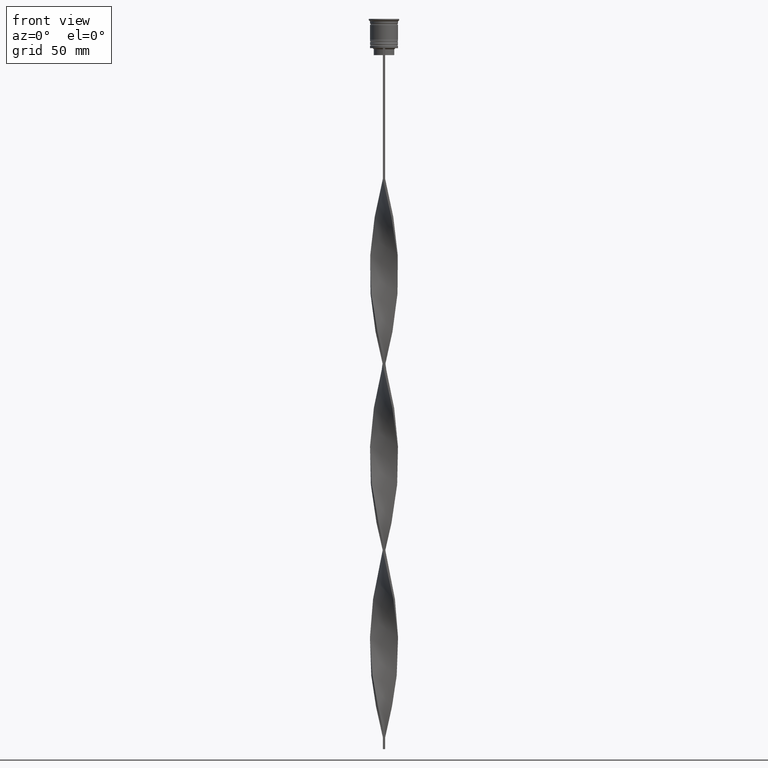
[diagram: clean part render]
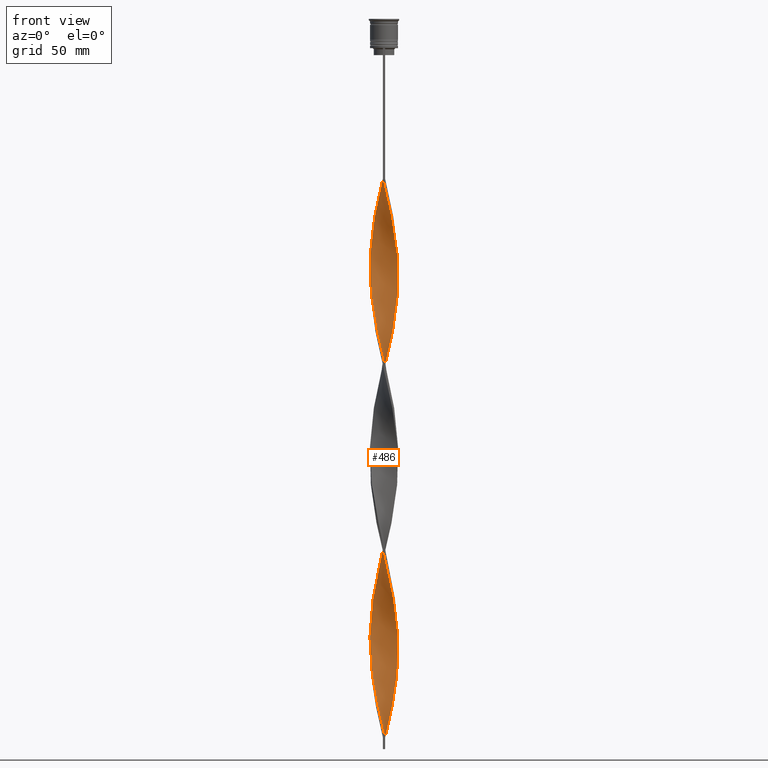
[diagram: same view with one face highlighted and labeled with its STEP entity id]
A machine part, front view. The second image highlights one B-rep face of the part: STEP entity #486.
In plain terms, the highlighted face is a freeform B-spline surface patch.
Its self-contained STEP definition (entity closure, byte-faithful):
#9 = CARTESIAN_POINT ( 'NONE',  ( 5.735176475513732441, -1.892691680130197840, -261.6916666666666629 ) ) ;
#12 = CARTESIAN_POINT ( 'NONE',  ( 0.4999999999999990563, -6.000000000000000000, -307.5000000000000000 ) ) ;
#13 = CARTESIAN_POINT ( 'NONE',  ( -6.039350853412310371, 0.02778975905228745977, -189.9916666666667027 ) ) ;
#20 = CARTESIAN_POINT ( 'NONE',  ( -5.735176475513732441, -1.892691680130197174, -273.6416666666666515 ) ) ;
#27 = CARTESIAN_POINT ( 'NONE',  ( -4.902271885939097018, -3.527358977712832466, -205.9250000000000114 ) ) ;
#32 = CARTESIAN_POINT ( 'NONE',  ( -5.147994592395921387, -3.122203016567363765, -203.9333333333333655 ) ) ;
#46 = CARTESIAN_POINT ( 'NONE',  ( -6.000000000000000000, -0.4999999999999994449, -108.3333333333333428 ) ) ;
#49 = CARTESIAN_POINT ( 'NONE',  ( 3.889087296526011706, -4.596194077712558723, -247.7500000000000284 ) ) ;
#70 = CARTESIAN_POINT ( 'NONE',  ( 4.869603064867703779, -3.572323752398604224, -253.7250000000000512 ) ) ;
#73 = CARTESIAN_POINT ( 'NONE',  ( -0.4447626199438173278, -6.004347276090941321, -144.1833333333333371 ) ) ;
#74 = CARTESIAN_POINT ( 'NONE',  ( 5.960649146587691405, -0.9722102409477109131, -265.6750000000000682 ) ) ;
#91 = CARTESIAN_POINT ( 'NONE',  ( -2.329630224397260641, 5.551830600583447684, -76.46666666666666856 ) ) ;
#93 = CARTESIAN_POINT ( 'NONE',  ( -1.432450960538953932, 5.847912811050711035, -72.48333333333334849 ) ) ;
#110 = CARTESIAN_POINT ( 'NONE',  ( -5.969343698769574935, 0.9173149989399227433, -102.3583333333333343 ) ) ;
#111 = CARTESIAN_POINT ( 'NONE',  ( -5.969343698769575823, 0.9173149989399227433, -261.6916666666666629 ) ) ;
#131 = CARTESIAN_POINT ( 'NONE',  ( 3.572323752398604224, 4.869603064867703779, -293.5583333333334508 ) ) ;
#133 = CARTESIAN_POINT ( 'NONE',  ( 6.039350853412310371, -0.02778975905228946511, -110.3250000000000171 ) ) ;
#136 = CARTESIAN_POINT ( 'NONE',  ( -5.368484725653163814, -2.766568768664325439, -277.6250000000000568 ) ) ;
#154 = CARTESIAN_POINT ( 'NONE',  ( -1.378573708102108331, -5.860847594958395135, -140.1999999999999886 ) ) ;
#155 = CARTESIAN_POINT ( 'NONE',  ( 1.892691680130198284, 5.735176475513732441, -142.1916666666666913 ) ) ;
#157 = CARTESIAN_POINT ( 'NONE',  ( -3.889087296526012150, -4.596194077712557835, -287.5833333333333712 ) ) ;
#161 = CARTESIAN_POINT ( 'NONE',  ( 6.004347276090942209, 0.4447626199438162731, -271.6499999999999773 ) ) ;
#176 = CARTESIAN_POINT ( 'NONE',  ( 0.9173149989399209669, 5.969343698769575823, -221.8583333333333769 ) ) ;
#194 = CARTESIAN_POINT ( 'NONE',  ( -4.596194077712558723, 3.889087296526011706, -247.7500000000000284 ) ) ;
#223 = CARTESIAN_POINT ( 'NONE',  ( 3.527358977712831134, -4.902271885939097906, -86.42499999999999716 ) ) ;
#228 = CARTESIAN_POINT ( 'NONE',  ( 3.931220010942312104, -4.560209340103448916, -164.1000000000000227 ) ) ;
#241 = CARTESIAN_POINT ( 'NONE',  ( 1.839832417264294362, -5.752351491147217111, -78.45833333333334281 ) ) ;
#246 = CARTESIAN_POINT ( 'NONE',  ( 2.278439736343097710, 5.573034394999980101, -215.8833333333333542 ) ) ;
#248 = CARTESIAN_POINT ( 'NONE',  ( -4.560209340103447140, 3.931220010942312992, -172.0666666666666629 ) ) ;
#269 = CARTESIAN_POINT ( 'NONE',  ( -1.432450960538953932, 5.847912811050711035, -231.8166666666666629 ) ) ;
#283 = CARTESIAN_POINT ( 'NONE',  ( 4.902271885939097906, 3.527358977712830246, -126.2583333333333400 ) ) ;
#298 = CARTESIAN_POINT ( 'NONE',  ( 0.9173149989399222992, -5.969343698769575823, -233.8083333333333371 ) ) ;
#306 = CARTESIAN_POINT ( 'NONE',  ( 3.122203016567366873, 5.147994592395920499, -211.9000000000000057 ) ) ;
#317 = CARTESIAN_POINT ( 'NONE',  ( 0.4447626199438165506, -6.004347276090942209, -231.8166666666666629 ) ) ;
#320 = CARTESIAN_POINT ( 'NONE',  ( -4.902271885939097906, 3.527358977712831134, -90.40833333333335986 ) ) ;
#322 =( BOUNDED_SURFACE ( )  B_SPLINE_SURFACE ( 1, 2, ( 
 ( #2635, #1050, #2319, #1277, #3809, #344, #2235, #1420, #3100, #1376, #1709, #425, #3028, #2714, #2030, #1108, #2655, #3912, #2150, #2988, #3288, #133, #3933, #445, #1402, #468, #1128, #1733, #2696, #2074, #3011, #1090, #2406, #2679, #2362, #3624, #781, #155, #2009, #562, #2050, #3951, #2382, #3664, #3333, #487, #3643, #804, #1753, #1437, #2797, #1827, #248, #1516, #4053, #1207, #2481, #3827, #2570, #718, #1608, #1920, #2531, #3473, #1966, #987, #1945, #1896, #2258, #27, #1031, #2926, #1627, #3521, #1295, #3790, #632, #2551, #2887, #3165, #405, #2616, #317, #1314, #682, #3852, #1985, #3210, #380, #1584, #3250, #1276, #2868, #70, #3872, #2299, #2905, #9, #3808, #360, #2592, #1012, #3560, #965, #2234, #3493, #653, #2281, #3189, #343, #2987, #424, #2678, #131, #3909, #1478, #2343, #4025, #3605, #1496, #1400 ),
 ( #2361, #1180, #2634, #2654, #91, #4006, #3696, #3271, #2049, #1049, #2317, #3083, #1071, #2968, #761, #2029, #3889, #110, #3932, #2125, #1089, #3623, #3010, #780, #3311, #3580, #2458, #1160, #740, #2772, #3721, #466, #1358, #1732, #2008, #2752, #154, #2437, #1375, #444, #3405, #1708, #1808, #880, #856, #3386, #2147, #542, #228, #560, #2952, #4111, #2166, #938, #897, #3140, #957, #3741, #3158, #3447, #4051, #1538, #3424, #979, #1598, #579, #625, #2794, #3820, #2819, #3486, #1268, #306, #1845, #246, #3507, #1825, #1575, #3119, #1205, #1242, #2206, #269, #2226, #606, #4074, #1288, #644, #1556, #2544, #2518, #2856, #1909, #3801, #3178, #1224, #2479, #915, #1871, #332, #2836, #3780, #2880, #20, #2564, #2248, #1664, #1350, #352, #1367, #2626, #1641, #2354, #1061, #711, #1682, #1040, #2332, #3201, #1001, #1082 ) ),
 .UNSPECIFIED., .F., .F., .F. ) 
 B_SPLINE_SURFACE_WITH_KNOTS ( ( 2, 2 ),
 ( 3, 2, 2, 2, 2, 2, 2, 2, 2, 2, 2, 2, 2, 2, 2, 2, 2, 2, 2, 2, 2, 2, 2, 2, 2, 2, 2, 2, 2, 2, 2, 2, 2, 2, 2, 2, 2, 2, 2, 2, 2, 2, 2, 2, 2, 2, 2, 2, 2, 2, 2, 2, 2, 2, 2, 2, 2, 2, 2, 2, 3 ),
 ( 0.000000000000000000, 1.000000000000000000 ),
 ( 0.000000000000000000, 0.01250000000000000069, 0.02500000000000000139, 0.03749999999999999861, 0.05000000000000000278, 0.06250000000000000000, 0.07499999999999999722, 0.08749999999999999445, 0.1000000000000000056, 0.1125000000000000028, 0.1250000000000000000, 0.1375000000000000111, 0.1499999999999999944, 0.1625000000000000056, 0.1749999999999999889, 0.1875000000000000000, 0.2000000000000000111, 0.2124999999999999944, 0.2250000000000000056, 0.2374999999999999889, 0.2500000000000000000, 0.2625000000000000111, 0.2750000000000000222, 0.2874999999999999778, 0.2999999999999999889, 0.3125000000000000000, 0.3250000000000000111, 0.3375000000000000222, 0.3499999999999999778, 0.3624999999999999889, 0.3750000000000000000, 0.3875000000000000111, 0.4000000000000000222, 0.4124999999999999778, 0.4249999999999999889, 0.4375000000000000000, 0.4500000000000000111, 0.4625000000000000222, 0.4749999999999999778, 0.4874999999999999889, 0.5000000000000000000, 0.5124999999999999556, 0.5250000000000000222, 0.5374999999999999778, 0.5500000000000000444, 0.5625000000000000000, 0.5749999999999999556, 0.5875000000000000222, 0.5999999999999999778, 0.6125000000000000444, 0.6250000000000000000, 0.6374999999999999556, 0.6500000000000000222, 0.6624999999999999778, 0.6750000000000000444, 0.6875000000000000000, 0.6999999999999999556, 0.7125000000000000222, 0.7249999999999999778, 0.7375000000000000444, 0.7500000000000000000 ),
 .UNSPECIFIED. ) 
 GEOMETRIC_REPRESENTATION_ITEM ( )  RATIONAL_B_SPLINE_SURFACE ( (
 ( 1.000000000000000000, 0.9969173337331279638, 1.000000000000000000, 0.9969173337331279638, 1.000000000000000000, 0.9969173337331279638, 1.000000000000000000, 0.9969173337331279638, 1.000000000000000000, 0.9969173337331279638, 1.000000000000000000, 0.9969173337331279638, 1.000000000000000000, 0.9969173337331279638, 1.000000000000000000, 0.9969173337331279638, 1.000000000000000000, 0.9969173337331279638, 1.000000000000000000, 0.9969173337331279638, 1.000000000000000000, 0.9969173337331279638, 1.000000000000000000, 0.9969173337331279638, 1.000000000000000000, 0.9969173337331279638, 1.000000000000000000, 0.9969173337331279638, 1.000000000000000000, 0.9969173337331279638, 1.000000000000000000, 0.9969173337331279638, 1.000000000000000000, 0.9969173337331279638, 1.000000000000000000, 0.9969173337331279638, 1.000000000000000000, 0.9969173337331279638, 1.000000000000000000, 0.9969173337331279638, 1.000000000000000000, 0.9969173337331279638, 1.000000000000000000, 0.9969173337331279638, 1.000000000000000000, 0.9969173337331279638, 1.000000000000000000, 0.9969173337331279638, 1.000000000000000000, 0.9969173337331279638, 1.000000000000000000, 0.9969173337331279638, 1.000000000000000000, 0.9969173337331279638, 1.000000000000000000, 0.9969173337331279638, 1.000000000000000000, 0.9969173337331279638, 1.000000000000000000, 0.9969173337331279638, 1.000000000000000000, 0.9969173337331279638, 1.000000000000000000, 0.9969173337331279638, 1.000000000000000000, 0.9969173337331279638, 1.000000000000000000, 0.9969173337331279638, 1.000000000000000000, 0.9969173337331279638, 1.000000000000000000, 0.9969173337331279638, 1.000000000000000000, 0.9969173337331279638, 1.000000000000000000, 0.9969173337331279638, 1.000000000000000000, 0.9969173337331279638, 1.000000000000000000, 0.9969173337331279638, 1.000000000000000000, 0.9969173337331279638, 1.000000000000000000, 0.9969173337331279638, 1.000000000000000000, 0.9969173337331279638, 1.000000000000000000, 0.9969173337331279638, 1.000000000000000000, 0.9969173337331279638, 1.000000000000000000, 0.9969173337331279638, 1.000000000000000000, 0.9969173337331279638, 1.000000000000000000, 0.9969173337331279638, 1.000000000000000000, 0.9969173337331279638, 1.000000000000000000, 0.9969173337331279638, 1.000000000000000000, 0.9969173337331279638, 1.000000000000000000, 0.9969173337331279638, 1.000000000000000000, 0.9969173337331279638, 1.000000000000000000, 0.9969173337331279638, 1.000000000000000000, 0.9969173337331279638, 1.000000000000000000, 0.9969173337331279638, 1.000000000000000000, 0.9969173337331279638, 1.000000000000000000, 0.9969173337331279638, 1.000000000000000000, 0.9969173337331279638, 1.000000000000000000, 0.9969173337331279638, 1.000000000000000000),
 ( 1.000000000000000000, 0.9969173337331279638, 1.000000000000000000, 0.9969173337331279638, 1.000000000000000000, 0.9969173337331279638, 1.000000000000000000, 0.9969173337331279638, 1.000000000000000000, 0.9969173337331279638, 1.000000000000000000, 0.9969173337331279638, 1.000000000000000000, 0.9969173337331279638, 1.000000000000000000, 0.9969173337331279638, 1.000000000000000000, 0.9969173337331279638, 1.000000000000000000, 0.9969173337331279638, 1.000000000000000000, 0.9969173337331279638, 1.000000000000000000, 0.9969173337331279638, 1.000000000000000000, 0.9969173337331279638, 1.000000000000000000, 0.9969173337331279638, 1.000000000000000000, 0.9969173337331279638, 1.000000000000000000, 0.9969173337331279638, 1.000000000000000000, 0.9969173337331279638, 1.000000000000000000, 0.9969173337331279638, 1.000000000000000000, 0.9969173337331279638, 1.000000000000000000, 0.9969173337331279638, 1.000000000000000000, 0.9969173337331279638, 1.000000000000000000, 0.9969173337331279638, 1.000000000000000000, 0.9969173337331279638, 1.000000000000000000, 0.9969173337331279638, 1.000000000000000000, 0.9969173337331279638, 1.000000000000000000, 0.9969173337331279638, 1.000000000000000000, 0.9969173337331279638, 1.000000000000000000, 0.9969173337331279638, 1.000000000000000000, 0.9969173337331279638, 1.000000000000000000, 0.9969173337331279638, 1.000000000000000000, 0.9969173337331279638, 1.000000000000000000, 0.9969173337331279638, 1.000000000000000000, 0.9969173337331279638, 1.000000000000000000, 0.9969173337331279638, 1.000000000000000000, 0.9969173337331279638, 1.000000000000000000, 0.9969173337331279638, 1.000000000000000000, 0.9969173337331279638, 1.000000000000000000, 0.9969173337331279638, 1.000000000000000000, 0.9969173337331279638, 1.000000000000000000, 0.9969173337331279638, 1.000000000000000000, 0.9969173337331279638, 1.000000000000000000, 0.9969173337331279638, 1.000000000000000000, 0.9969173337331279638, 1.000000000000000000, 0.9969173337331279638, 1.000000000000000000, 0.9969173337331279638, 1.000000000000000000, 0.9969173337331279638, 1.000000000000000000, 0.9969173337331279638, 1.000000000000000000, 0.9969173337331279638, 1.000000000000000000, 0.9969173337331279638, 1.000000000000000000, 0.9969173337331279638, 1.000000000000000000, 0.9969173337331279638, 1.000000000000000000, 0.9969173337331279638, 1.000000000000000000, 0.9969173337331279638, 1.000000000000000000, 0.9969173337331279638, 1.000000000000000000, 0.9969173337331279638, 1.000000000000000000, 0.9969173337331279638, 1.000000000000000000, 0.9969173337331279638, 1.000000000000000000, 0.9969173337331279638, 1.000000000000000000, 0.9969173337331279638, 1.000000000000000000, 0.9969173337331279638, 1.000000000000000000) ) ) 
 REPRESENTATION_ITEM ( '' )  SURFACE ( )  );
#323 = CARTESIAN_POINT ( 'NONE',  ( -5.551830600583447684, 2.329630224397261973, -180.0333333333333599 ) ) ;
#332 = CARTESIAN_POINT ( 'NONE',  ( -6.039350853412310371, -0.02778975905228876081, -265.6750000000000682 ) ) ;
#337 = CARTESIAN_POINT ( 'NONE',  ( -0.4447626199438173278, -6.004347276090941321, -303.5166666666666515 ) ) ;
#343 = CARTESIAN_POINT ( 'NONE',  ( 4.902271885939097906, 3.527358977712830246, -285.5916666666666401 ) ) ;
#344 = CARTESIAN_POINT ( 'NONE',  ( 1.839832417264294362, -5.752351491147217111, -78.45833333333332860 ) ) ;
#345 = CARTESIAN_POINT ( 'NONE',  ( -5.119043895260434240, -3.169446260531464166, -120.2833333333333456 ) ) ;
#346 = CARTESIAN_POINT ( 'NONE',  ( -1.839832417264293252, 5.752351491147217999, -158.1250000000000284 ) ) ;
#352 = CARTESIAN_POINT ( 'NONE',  ( -4.560209340103448916, -3.931220010942312104, -283.6000000000000227 ) ) ;
#360 = CARTESIAN_POINT ( 'NONE',  ( 5.960649146587692293, -0.9722102409477109131, -265.6750000000000682 ) ) ;
#363 = CARTESIAN_POINT ( 'NONE',  ( -6.039350853412310371, -0.02778975905228876081, -106.3416666666666686 ) ) ;
#364 = CARTESIAN_POINT ( 'NONE',  ( 0.4447626199438165506, -6.004347276090942209, -231.8166666666666629 ) ) ;
#380 = CARTESIAN_POINT ( 'NONE',  ( 3.122203016567365541, -5.147994592395921387, -243.7666666666666799 ) ) ;
#382 = CARTESIAN_POINT ( 'NONE',  ( -1.378573708102108331, -5.860847594958395135, -140.1999999999999886 ) ) ;
#384 = CARTESIAN_POINT ( 'NONE',  ( 2.766568768664326328, 5.368484725653163814, -297.5416666666666856 ) ) ;
#396 = VECTOR ( 'NONE', #450, 1000.000000000000000 ) ;
#405 = CARTESIAN_POINT ( 'NONE',  ( -0.4999999999999997780, -6.000000000000000000, -227.8333333333333428 ) ) ;
#408 = CARTESIAN_POINT ( 'NONE',  ( -2.766568768664325884, 5.368484725653163814, -78.45833333333334281 ) ) ;
#424 = CARTESIAN_POINT ( 'NONE',  ( 4.290116269486021316, 4.250815615339194053, -289.5750000000000455 ) ) ;
#425 = CARTESIAN_POINT ( 'NONE',  ( 4.250815615339194053, -4.290116269486021316, -90.40833333333334565 ) ) ;
#426 = CARTESIAN_POINT ( 'NONE',  ( -6.000000000000000000, -0.4999999999999994449, -267.6666666666667425 ) ) ;
#429 = LINE ( 'NONE', #1076, #396 ) ;
#444 = CARTESIAN_POINT ( 'NONE',  ( 0.02778975905228832713, -6.039350853412310371, -146.1749999999999829 ) ) ;
#445 = CARTESIAN_POINT ( 'NONE',  ( 5.969343698769574935, 0.9173149989399217441, -114.3083333333333655 ) ) ;
#447 = CARTESIAN_POINT ( 'NONE',  ( -5.847912811050711035, -1.432450960538953488, -271.6499999999999773 ) ) ;
#450 = DIRECTION ( 'NONE',  ( 0.000000000000000000, 1.000000000000000000, 0.000000000000000000 ) ) ;
#466 = CARTESIAN_POINT ( 'NONE',  ( -3.527358977712831134, -4.902271885939097906, -130.2416666666667027 ) ) ;
#468 = CARTESIAN_POINT ( 'NONE',  ( 5.752351491147217111, 1.839832417264293918, -118.2916666666666998 ) ) ;
#471 = CARTESIAN_POINT ( 'NONE',  ( -4.560209340103448916, -3.931220010942312104, -283.6000000000000227 ) ) ;
#475 = CARTESIAN_POINT ( 'NONE',  ( 6.000000000000000000, -0.5000000000000001110, -267.6666666666667425 ) ) ;
#486 = ADVANCED_FACE ( 'NONE', ( #2594 ), #322, .T. ) ;
#487 = CARTESIAN_POINT ( 'NONE',  ( -1.839832417264293252, 5.752351491147217999, -158.1250000000000000 ) ) ;
#489 = CARTESIAN_POINT ( 'NONE',  ( 3.889087296526013038, 4.596194077712556947, -207.9166666666666572 ) ) ;
#503 = CARTESIAN_POINT ( 'NONE',  ( -3.169446260531464166, 5.119043895260434240, -239.7833333333333599 ) ) ;
#536 = CARTESIAN_POINT ( 'NONE',  ( 4.560209340103448028, -3.931220010942312992, -92.40000000000000568 ) ) ;
#542 = CARTESIAN_POINT ( 'NONE',  ( 3.572323752398603336, -4.869603064867704667, -162.1083333333333769 ) ) ;
#554 = CARTESIAN_POINT ( 'NONE',  ( 2.278439736343096378, -5.573034394999980989, -80.45000000000000284 ) ) ;
#560 = CARTESIAN_POINT ( 'NONE',  ( 4.290116269486020428, -4.250815615339194942, -166.0916666666666686 ) ) ;
#562 = CARTESIAN_POINT ( 'NONE',  ( 0.9722102409477113572, 5.960649146587692293, -146.1749999999999829 ) ) ;
#573 = CARTESIAN_POINT ( 'NONE',  ( 5.393717298852746644, 2.717047055421899948, -122.2750000000000199 ) ) ;
#579 = CARTESIAN_POINT ( 'NONE',  ( 5.368484725653162926, 2.766568768664326772, -197.9583333333333997 ) ) ;
#598 = CARTESIAN_POINT ( 'NONE',  ( 0.02778975905228979124, 6.039350853412310371, -150.1583333333333599 ) ) ;
#606 = CARTESIAN_POINT ( 'NONE',  ( -2.329630224397260641, 5.551830600583447684, -235.8000000000000114 ) ) ;
#619 = CARTESIAN_POINT ( 'NONE',  ( -5.752351491147216223, -1.839832417264295694, -197.9583333333333712 ) ) ;
#625 = CARTESIAN_POINT ( 'NONE',  ( 5.119043895260435129, 3.169446260531463722, -199.9500000000000171 ) ) ;
#629 = CARTESIAN_POINT ( 'NONE',  ( -2.717047055421900836, -5.393717298852745756, -293.5583333333333940 ) ) ;
#632 = CARTESIAN_POINT ( 'NONE',  ( -2.329630224397262417, -5.551830600583447684, -219.8666666666666742 ) ) ;
#634 = CARTESIAN_POINT ( 'NONE',  ( -5.551830600583448572, -2.329630224397260641, -116.3000000000000114 ) ) ;
#635 = CARTESIAN_POINT ( 'NONE',  ( 3.122203016567365541, -5.147994592395921387, -243.7666666666666799 ) ) ;
#644 = CARTESIAN_POINT ( 'NONE',  ( -3.572323752398604224, 4.869603064867704667, -241.7750000000000625 ) ) ;
#653 = CARTESIAN_POINT ( 'NONE',  ( 5.573034394999980989, 2.278439736343096378, -279.6166666666666742 ) ) ;
#656 = CARTESIAN_POINT ( 'NONE',  ( -6.004347276090942209, 0.4447626199438168837, -104.3499999999999943 ) ) ;
#659 = CARTESIAN_POINT ( 'NONE',  ( -2.329630224397262417, -5.551830600583447684, -219.8666666666666742 ) ) ;
#682 = CARTESIAN_POINT ( 'NONE',  ( 1.378573708102107886, -5.860847594958395135, -235.8000000000000114 ) ) ;
#684 = CARTESIAN_POINT ( 'NONE',  ( -3.122203016567365985, -5.147994592395920499, -132.2333333333333485 ) ) ;
#685 = CARTESIAN_POINT ( 'NONE',  ( -3.572323752398603780, -4.869603064867703779, -213.8916666666666799 ) ) ;
#701 = CARTESIAN_POINT ( 'NONE',  ( -5.960649146587691405, -0.9722102409477102469, -110.3250000000000171 ) ) ;
#703 = CARTESIAN_POINT ( 'NONE',  ( 5.752351491147217111, 1.839832417264293918, -277.6250000000000568 ) ) ;
#711 = CARTESIAN_POINT ( 'NONE',  ( -2.278439736343097710, -5.573034394999980101, -295.5499999999999545 ) ) ;
#718 = CARTESIAN_POINT ( 'NONE',  ( -5.960649146587692293, 0.9722102409477144658, -186.0083333333333258 ) ) ;
#721 = CARTESIAN_POINT ( 'NONE',  ( 0.9722102409477098028, -5.960649146587691405, -150.1583333333333599 ) ) ;
#740 = CARTESIAN_POINT ( 'NONE',  ( -4.560209340103448916, -3.931220010942312104, -124.2666666666666799 ) ) ;
#744 = CARTESIAN_POINT ( 'NONE',  ( 5.393717298852746644, -2.717047055421898616, -174.0583333333333371 ) ) ;
#747 = CARTESIAN_POINT ( 'NONE',  ( 1.892691680130198284, 5.735176475513732441, -301.5250000000000341 ) ) ;
#757 = CARTESIAN_POINT ( 'NONE',  ( 0.5000000000000000000, 2.000000000000000000, -307.5000000000000000 ) ) ;
#759 =( BOUNDED_CURVE ( )  B_SPLINE_CURVE ( 2, ( #3399, #1449, #4067, #3690, #3735, #241, #554, #2117, #1532, #223, #3378, #892, #536, #2727, #2766, #1175, #4020, #2473, #1820, #3094, #1509, #2788, #4044, #2812, #1198, #3984, #2160, #573, #3755, #283, #4085, #2829, #3795, #3477, #909, #3832, #3460, #3169, #1899, #1298, #970, #598, #1611, #3135, #2200, #346, #2873, #950, #1925, #1281, #2574, #2178, #1235, #1319, #3193, #2847, #323, #1589, #2512, #2239, #2891, #13, #3498, #2219, #1550, #619, #3773, #1882, #32, #992, #3151, #3440, #2598, #685, #2557, #3813, #659, #1949, #2264, #930, #3525, #3214, #364, #298, #1633, #1865, #2909, #1567, #635, #1258, #49, #4103, #2536, #1408, #2284, #2619, #2348, #3232, #3610, #74, #475, #2972, #161, #1094, #1014, #703, #2684, #1342, #1677, #3628, #3017, #785, #3938, #2367, #1739, #384, #766, #747, #2014, #1655, #2955 ),
 .UNSPECIFIED., .F., .T. ) 
 B_SPLINE_CURVE_WITH_KNOTS ( ( 3, 2, 2, 2, 2, 2, 2, 2, 2, 2, 2, 2, 2, 2, 2, 2, 2, 2, 2, 2, 2, 2, 2, 2, 2, 2, 2, 2, 2, 2, 2, 2, 2, 2, 2, 2, 2, 2, 2, 2, 2, 2, 2, 2, 2, 2, 2, 2, 2, 2, 2, 2, 2, 2, 2, 2, 2, 2, 2, 2, 3 ),
 ( 0.000000000000000000, 0.01250000000000000243, 0.02500000000000000486, 0.03749999999999999861, 0.05000000000000000971, 0.06250000000000000000, 0.07499999999999999722, 0.08749999999999998057, 0.1000000000000000194, 0.1125000000000000028, 0.1250000000000000000, 0.1375000000000000111, 0.1499999999999999944, 0.1625000000000000056, 0.1749999999999999611, 0.1875000000000000000, 0.2000000000000000389, 0.2124999999999999944, 0.2250000000000000056, 0.2374999999999999611, 0.2500000000000000000, 0.2625000000000000111, 0.2750000000000000222, 0.2874999999999999778, 0.2999999999999999889, 0.3125000000000000000, 0.3250000000000000111, 0.3375000000000000777, 0.3499999999999999223, 0.3624999999999999889, 0.3750000000000000000, 0.3875000000000000111, 0.4000000000000000777, 0.4124999999999999223, 0.4249999999999999889, 0.4375000000000000000, 0.4500000000000000111, 0.4625000000000000777, 0.4749999999999999223, 0.4874999999999999889, 0.5000000000000000000, 0.5124999999999999556, 0.5250000000000000222, 0.5374999999999999778, 0.5500000000000000444, 0.5625000000000000000, 0.5749999999999999556, 0.5875000000000000222, 0.5999999999999999778, 0.6125000000000000444, 0.6250000000000000000, 0.6374999999999999556, 0.6500000000000000222, 0.6624999999999999778, 0.6750000000000001554, 0.6875000000000000000, 0.6999999999999998446, 0.7125000000000000222, 0.7249999999999999778, 0.7375000000000001554, 0.7500000000000000000 ),
 .UNSPECIFIED. ) 
 CURVE ( )  GEOMETRIC_REPRESENTATION_ITEM ( )  RATIONAL_B_SPLINE_CURVE ( ( 1.000000000000000000, 0.9969173337331279638, 1.000000000000000000, 0.9969173337331279638, 1.000000000000000000, 0.9969173337331279638, 1.000000000000000000, 0.9969173337331279638, 1.000000000000000000, 0.9969173337331279638, 1.000000000000000000, 0.9969173337331279638, 1.000000000000000000, 0.9969173337331279638, 1.000000000000000000, 0.9969173337331279638, 1.000000000000000000, 0.9969173337331279638, 1.000000000000000000, 0.9969173337331279638, 1.000000000000000000, 0.9969173337331279638, 1.000000000000000000, 0.9969173337331279638, 1.000000000000000000, 0.9969173337331279638, 1.000000000000000000, 0.9969173337331279638, 1.000000000000000000, 0.9969173337331279638, 1.000000000000000000, 0.9969173337331279638, 1.000000000000000000, 0.9969173337331279638, 1.000000000000000000, 0.9969173337331279638, 1.000000000000000000, 0.9969173337331279638, 1.000000000000000000, 0.9969173337331279638, 1.000000000000000000, 0.9969173337331279638, 1.000000000000000000, 0.9969173337331279638, 1.000000000000000000, 0.9969173337331279638, 1.000000000000000000, 0.9969173337331279638, 1.000000000000000000, 0.9969173337331279638, 1.000000000000000000, 0.9969173337331279638, 1.000000000000000000, 0.9969173337331279638, 1.000000000000000000, 0.9969173337331279638, 1.000000000000000000, 0.9969173337331279638, 1.000000000000000000, 0.9969173337331279638, 1.000000000000000000, 0.9969173337331279638, 1.000000000000000000, 0.9969173337331279638, 1.000000000000000000, 0.9969173337331279638, 1.000000000000000000, 0.9969173337331279638, 1.000000000000000000, 0.9969173337331279638, 1.000000000000000000, 0.9969173337331279638, 1.000000000000000000, 0.9969173337331279638, 1.000000000000000000, 0.9969173337331279638, 1.000000000000000000, 0.9969173337331279638, 1.000000000000000000, 0.9969173337331279638, 1.000000000000000000, 0.9969173337331279638, 1.000000000000000000, 0.9969173337331279638, 1.000000000000000000, 0.9969173337331279638, 1.000000000000000000, 0.9969173337331279638, 1.000000000000000000, 0.9969173337331279638, 1.000000000000000000, 0.9969173337331279638, 1.000000000000000000, 0.9969173337331279638, 1.000000000000000000, 0.9969173337331279638, 1.000000000000000000, 0.9969173337331279638, 1.000000000000000000, 0.9969173337331279638, 1.000000000000000000, 0.9969173337331279638, 1.000000000000000000, 0.9969173337331279638, 1.000000000000000000, 0.9969173337331279638, 1.000000000000000000, 0.9969173337331279638, 1.000000000000000000, 0.9969173337331279638, 1.000000000000000000, 0.9969173337331279638, 1.000000000000000000, 0.9969173337331279638, 1.000000000000000000, 0.9969173337331279638, 1.000000000000000000, 0.9969173337331279638, 1.000000000000000000, 0.9969173337331279638, 1.000000000000000000 ) ) 
 REPRESENTATION_ITEM ( '' )  );
#761 = CARTESIAN_POINT ( 'NONE',  ( -5.573034394999980101, 2.278439736343096822, -96.38333333333335418 ) ) ;
#763 = CARTESIAN_POINT ( 'NONE',  ( -0.9722102409477105800, 5.960649146587691405, -229.8250000000000171 ) ) ;
#766 = CARTESIAN_POINT ( 'NONE',  ( 2.329630224397261529, 5.551830600583447684, -299.5333333333333030 ) ) ;
#780 = CARTESIAN_POINT ( 'NONE',  ( -5.735176475513732441, -1.892691680130197174, -114.3083333333333655 ) ) ;
#781 = CARTESIAN_POINT ( 'NONE',  ( 2.329630224397261529, 5.551830600583447684, -140.1999999999999886 ) ) ;
#783 = CARTESIAN_POINT ( 'NONE',  ( 5.847912811050711035, 1.432450960538952600, -191.9833333333333485 ) ) ;
#785 = CARTESIAN_POINT ( 'NONE',  ( 4.290116269486021316, 4.250815615339194053, -289.5750000000000455 ) ) ;
#804 = CARTESIAN_POINT ( 'NONE',  ( -2.717047055421899060, 5.393717298852745756, -162.1083333333333769 ) ) ;
#806 = CARTESIAN_POINT ( 'NONE',  ( 5.752351491147215334, -1.839832417264297248, -178.0416666666667140 ) ) ;
#824 = CARTESIAN_POINT ( 'NONE',  ( 3.527358977712834243, 4.902271885939096130, -209.9083333333333599 ) ) ;
#856 = CARTESIAN_POINT ( 'NONE',  ( 2.329630224397260196, -5.551830600583448572, -156.1333333333333542 ) ) ;
#880 = CARTESIAN_POINT ( 'NONE',  ( 1.892691680130196952, -5.735176475513732441, -154.1416666666666799 ) ) ;
#892 = CARTESIAN_POINT ( 'NONE',  ( 4.250815615339194053, -4.290116269486021316, -90.40833333333335986 ) ) ;
#897 = CARTESIAN_POINT ( 'NONE',  ( 5.573034394999980101, -2.278439736343097710, -176.0500000000000114 ) ) ;
#909 = CARTESIAN_POINT ( 'NONE',  ( 3.169446260531464610, 5.119043895260433352, -136.2166666666666686 ) ) ;
#915 = CARTESIAN_POINT ( 'NONE',  ( -5.969343698769574935, 0.9173149989399227433, -261.6916666666666629 ) ) ;
#930 = CARTESIAN_POINT ( 'NONE',  ( -0.9722102409477146878, -5.960649146587691405, -225.8416666666666970 ) ) ;
#938 = CARTESIAN_POINT ( 'NONE',  ( 5.393717298852745756, -2.717047055421898616, -174.0583333333333371 ) ) ;
#950 = CARTESIAN_POINT ( 'NONE',  ( -2.717047055421899060, 5.393717298852746644, -162.1083333333333769 ) ) ;
#957 = CARTESIAN_POINT ( 'NONE',  ( 5.860847594958395135, -1.378573708102108775, -180.0333333333333599 ) ) ;
#965 = CARTESIAN_POINT ( 'NONE',  ( 5.969343698769574935, 0.9173149989399217441, -273.6416666666666515 ) ) ;
#968 = CARTESIAN_POINT ( 'NONE',  ( -2.329630224397260641, 5.551830600583447684, -76.46666666666666856 ) ) ;
#970 = CARTESIAN_POINT ( 'NONE',  ( 0.5000000000000005551, 6.000000000000000000, -148.1666666666666572 ) ) ;
#979 = CARTESIAN_POINT ( 'NONE',  ( 5.735176475513733330, 1.892691680130193843, -193.9749999999999943 ) ) ;
#987 = CARTESIAN_POINT ( 'NONE',  ( -5.752351491147216223, -1.839832417264295694, -197.9583333333333997 ) ) ;
#990 = CARTESIAN_POINT ( 'NONE',  ( -5.368484725653163814, -2.766568768664325439, -118.2916666666666998 ) ) ;
#992 = CARTESIAN_POINT ( 'NONE',  ( -4.902271885939097018, -3.527358977712832466, -205.9250000000000114 ) ) ;
#1001 = CARTESIAN_POINT ( 'NONE',  ( 0.02778975905228832713, -6.039350853412310371, -305.5083333333334963 ) ) ;
#1012 = CARTESIAN_POINT ( 'NONE',  ( 6.039350853412310371, -0.02778975905228946511, -269.6583333333334167 ) ) ;
#1014 = CARTESIAN_POINT ( 'NONE',  ( 5.860847594958396023, 1.378573708102107442, -275.6333333333333258 ) ) ;
#1031 = CARTESIAN_POINT ( 'NONE',  ( -4.596194077712559611, -3.889087296526010373, -207.9166666666666572 ) ) ;
#1033 = CARTESIAN_POINT ( 'NONE',  ( -3.527358977712831134, -4.902271885939097906, -130.2416666666667027 ) ) ;
#1040 = CARTESIAN_POINT ( 'NONE',  ( -1.378573708102108331, -5.860847594958395135, -299.5333333333333030 ) ) ;
#1049 = CARTESIAN_POINT ( 'NONE',  ( -4.290116269486021316, 4.250815615339194053, -86.42499999999999716 ) ) ;
#1050 = CARTESIAN_POINT ( 'NONE',  ( -0.02778975905228908000, -6.039350853412310371, -70.49166666666670267 ) ) ;
#1052 = CARTESIAN_POINT ( 'NONE',  ( 3.572323752398603780, -4.869603064867703779, -162.1083333333333769 ) ) ;
#1061 = CARTESIAN_POINT ( 'NONE',  ( -2.717047055421900836, -5.393717298852744868, -293.5583333333334508 ) ) ;
#1071 = CARTESIAN_POINT ( 'NONE',  ( -5.147994592395921387, 3.122203016567365541, -92.40000000000000568 ) ) ;
#1073 = CARTESIAN_POINT ( 'NONE',  ( 5.573034394999980101, -2.278439736343097710, -176.0500000000000114 ) ) ;
#1076 = CARTESIAN_POINT ( 'NONE',  ( -0.4999999999999997780, -6.000000000000000000, -68.50000000000000000 ) ) ;
#1082 = CARTESIAN_POINT ( 'NONE',  ( 0.4999999999999990563, -6.000000000000000000, -307.5000000000000000 ) ) ;
#1089 = CARTESIAN_POINT ( 'NONE',  ( -6.000000000000000000, -0.4999999999999994449, -108.3333333333333428 ) ) ;
#1090 = CARTESIAN_POINT ( 'NONE',  ( 4.290116269486021316, 4.250815615339194053, -130.2416666666667027 ) ) ;
#1092 = CARTESIAN_POINT ( 'NONE',  ( 2.717047055421899060, 5.393717298852746644, -213.8916666666666799 ) ) ;
#1094 = CARTESIAN_POINT ( 'NONE',  ( 5.969343698769575823, 0.9173149989399217441, -273.6416666666666515 ) ) ;
#1108 = CARTESIAN_POINT ( 'NONE',  ( 5.368484725653163814, -2.766568768664325884, -98.37500000000002842 ) ) ;
#1110 = CARTESIAN_POINT ( 'NONE',  ( -3.527358977712831134, -4.902271885939097906, -289.5750000000000455 ) ) ;
#1128 = CARTESIAN_POINT ( 'NONE',  ( 5.573034394999980989, 2.278439736343096378, -120.2833333333333456 ) ) ;
#1130 = CARTESIAN_POINT ( 'NONE',  ( 4.596194077712557835, -3.889087296526013038, -168.0833333333333712 ) ) ;
#1160 = CARTESIAN_POINT ( 'NONE',  ( -4.869603064867704667, -3.572323752398604224, -122.2750000000000341 ) ) ;
#1165 = CARTESIAN_POINT ( 'NONE',  ( -3.122203016567365985, -5.147994592395920499, -291.5666666666667197 ) ) ;
#1175 = CARTESIAN_POINT ( 'NONE',  ( 5.368484725653163814, -2.766568768664325884, -98.37500000000001421 ) ) ;
#1180 = CARTESIAN_POINT ( 'NONE',  ( -0.9722102409477106910, 5.960649146587692293, -70.49166666666670267 ) ) ;
#1198 = CARTESIAN_POINT ( 'NONE',  ( 5.860847594958396023, 1.378573708102107442, -116.3000000000000114 ) ) ;
#1205 = CARTESIAN_POINT ( 'NONE',  ( -0.02778975905228496524, 6.039350853412310371, -225.8416666666666970 ) ) ;
#1207 = CARTESIAN_POINT ( 'NONE',  ( -5.368484725653162037, 2.766568768664328548, -178.0416666666667140 ) ) ;
#1224 = CARTESIAN_POINT ( 'NONE',  ( -5.752351491147217111, 1.839832417264294362, -257.7083333333333144 ) ) ;
#1235 = CARTESIAN_POINT ( 'NONE',  ( -4.560209340103447140, 3.931220010942312992, -172.0666666666666629 ) ) ;
#1242 = CARTESIAN_POINT ( 'NONE',  ( -0.4999999999999997780, 6.000000000000000000, -227.8333333333333428 ) ) ;
#1258 = CARTESIAN_POINT ( 'NONE',  ( 3.527358977712831134, -4.902271885939097906, -245.7583333333333826 ) ) ;
#1268 = CARTESIAN_POINT ( 'NONE',  ( 3.527358977712834243, 4.902271885939096130, -209.9083333333333883 ) ) ;
#1276 = CARTESIAN_POINT ( 'NONE',  ( 4.250815615339194053, -4.290116269486021316, -249.7416666666666742 ) ) ;
#1277 = CARTESIAN_POINT ( 'NONE',  ( 0.9173149989399222992, -5.969343698769574935, -74.47500000000002274 ) ) ;
#1281 = CARTESIAN_POINT ( 'NONE',  ( -3.527358977712830246, 4.902271885939098794, -166.0916666666666970 ) ) ;
#1288 = CARTESIAN_POINT ( 'NONE',  ( -3.169446260531464166, 5.119043895260434240, -239.7833333333333599 ) ) ;
#1295 = CARTESIAN_POINT ( 'NONE',  ( -3.169446260531465498, -5.119043895260433352, -215.8833333333333542 ) ) ;
#1296 = CARTESIAN_POINT ( 'NONE',  ( -4.869603064867703779, -3.572323752398604224, -122.2750000000000199 ) ) ;
#1298 = CARTESIAN_POINT ( 'NONE',  ( 0.9722102409477113572, 5.960649146587691405, -146.1750000000000114 ) ) ;
#1314 = CARTESIAN_POINT ( 'NONE',  ( 0.9173149989399222992, -5.969343698769574935, -233.8083333333333371 ) ) ;
#1317 = CARTESIAN_POINT ( 'NONE',  ( -4.560209340103448916, -3.931220010942312104, -124.2666666666666799 ) ) ;
#1319 = CARTESIAN_POINT ( 'NONE',  ( -4.869603064867703779, 3.572323752398603336, -174.0583333333333371 ) ) ;
#1320 = EDGE_LOOP ( 'NONE', ( #2347, #2664, #2849, #3362 ) ) ;
#1342 = CARTESIAN_POINT ( 'NONE',  ( 5.393717298852746644, 2.717047055421899948, -281.6083333333334053 ) ) ;
#1350 = CARTESIAN_POINT ( 'NONE',  ( -4.869603064867704667, -3.572323752398604224, -281.6083333333334622 ) ) ;
#1358 = CARTESIAN_POINT ( 'NONE',  ( -3.122203016567365985, -5.147994592395920499, -132.2333333333333485 ) ) ;
#1360 = CARTESIAN_POINT ( 'NONE',  ( -1.839832417264294806, -5.752351491147217111, -138.2083333333333144 ) ) ;
#1367 = CARTESIAN_POINT ( 'NONE',  ( -4.250815615339194053, -4.290116269486020428, -285.5916666666666401 ) ) ;
#1375 = CARTESIAN_POINT ( 'NONE',  ( -0.4447626199438173278, -6.004347276090941321, -144.1833333333333371 ) ) ;
#1376 = CARTESIAN_POINT ( 'NONE',  ( 3.527358977712831134, -4.902271885939097906, -86.42499999999999716 ) ) ;
#1379 = CARTESIAN_POINT ( 'NONE',  ( 4.250815615339193165, 4.290116269486022205, -205.9250000000000114 ) ) ;
#1395 = CARTESIAN_POINT ( 'NONE',  ( -0.4999999999999997780, 6.000000000000000888, -68.50000000000000000 ) ) ;
#1400 = CARTESIAN_POINT ( 'NONE',  ( 0.5000000000000005551, 6.000000000000000000, -307.5000000000000000 ) ) ;
#1402 = CARTESIAN_POINT ( 'NONE',  ( 5.860847594958396023, 1.378573708102107442, -116.3000000000000114 ) ) ;
#1404 = CARTESIAN_POINT ( 'NONE',  ( -3.572323752398604224, 4.869603064867703779, -241.7750000000000341 ) ) ;
#1408 = CARTESIAN_POINT ( 'NONE',  ( 4.869603064867703779, -3.572323752398604224, -253.7250000000000227 ) ) ;
#1420 = CARTESIAN_POINT ( 'NONE',  ( 2.717047055421899948, -5.393717298852745756, -82.44166666666666288 ) ) ;
#1422 = CARTESIAN_POINT ( 'NONE',  ( -4.869603064867703779, -3.572323752398604224, -281.6083333333334053 ) ) ;
#1437 = CARTESIAN_POINT ( 'NONE',  ( -3.527358977712830246, 4.902271885939098794, -166.0916666666666686 ) ) ;
#1440 = CARTESIAN_POINT ( 'NONE',  ( -0.4999999999999997780, 6.000000000000000000, -227.8333333333333428 ) ) ;
#1449 = CARTESIAN_POINT ( 'NONE',  ( -0.02778975905228908347, -6.039350853412310371, -70.49166666666668846 ) ) ;
#1464 = CARTESIAN_POINT ( 'NONE',  ( -4.902271885939097906, 3.527358977712831134, -249.7416666666667027 ) ) ;
#1478 = CARTESIAN_POINT ( 'NONE',  ( 2.766568768664326328, 5.368484725653163814, -297.5416666666666856 ) ) ;
#1496 = CARTESIAN_POINT ( 'NONE',  ( 0.9722102409477113572, 5.960649146587692293, -305.5083333333334963 ) ) ;
#1509 = CARTESIAN_POINT ( 'NONE',  ( 6.000000000000000000, -0.5000000000000001110, -108.3333333333333428 ) ) ;
#1516 = CARTESIAN_POINT ( 'NONE',  ( -4.869603064867704667, 3.572323752398602892, -174.0583333333333371 ) ) ;
#1532 = CARTESIAN_POINT ( 'NONE',  ( 3.122203016567365541, -5.147994592395921387, -84.43333333333333712 ) ) ;
#1538 = CARTESIAN_POINT ( 'NONE',  ( 5.960649146587692293, 0.9722102409477122453, -189.9916666666667027 ) ) ;
#1550 = CARTESIAN_POINT ( 'NONE',  ( -5.860847594958396023, -1.378573708102106776, -195.9666666666666686 ) ) ;
#1556 = CARTESIAN_POINT ( 'NONE',  ( -3.931220010942312992, 4.560209340103448028, -243.7666666666666799 ) ) ;
#1567 = CARTESIAN_POINT ( 'NONE',  ( 2.717047055421899948, -5.393717298852746644, -241.7750000000000341 ) ) ;
#1574 = EDGE_CURVE ( 'NONE', #4087, #4104, #759, .T. ) ;
#1575 = CARTESIAN_POINT ( 'NONE',  ( 0.9173149989399209669, 5.969343698769574935, -221.8583333333333769 ) ) ;
#1584 = CARTESIAN_POINT ( 'NONE',  ( 3.527358977712831134, -4.902271885939097906, -245.7583333333333826 ) ) ;
#1589 = CARTESIAN_POINT ( 'NONE',  ( -5.735176475513732441, 1.892691680130196064, -182.0250000000000341 ) ) ;
#1598 = CARTESIAN_POINT ( 'NONE',  ( 5.551830600583448572, 2.329630224397259752, -195.9666666666666686 ) ) ;
#1608 = CARTESIAN_POINT ( 'NONE',  ( -6.000000000000000000, 0.5000000000000008882, -188.0000000000000000 ) ) ;
#1610 = CARTESIAN_POINT ( 'NONE',  ( -5.752351491147217111, 1.839832417264294362, -98.37500000000001421 ) ) ;
#1611 = CARTESIAN_POINT ( 'NONE',  ( -0.4447626199438157180, 6.004347276090942209, -152.1500000000000057 ) ) ;
#1627 = CARTESIAN_POINT ( 'NONE',  ( -3.931220010942313881, -4.560209340103447140, -211.9000000000000057 ) ) ;
#1628 = EDGE_CURVE ( 'NONE', #4087, #3589, #429, .T. ) ;
#1630 = CARTESIAN_POINT ( 'NONE',  ( -0.9722102409477105800, 5.960649146587691405, -70.49166666666668846 ) ) ;
#1633 = CARTESIAN_POINT ( 'NONE',  ( 1.378573708102107886, -5.860847594958395135, -235.8000000000000114 ) ) ;
#1641 = CARTESIAN_POINT ( 'NONE',  ( -3.527358977712831134, -4.902271885939097906, -289.5750000000000455 ) ) ;
#1645 = CARTESIAN_POINT ( 'NONE',  ( 0.5000000000000005551, 6.000000000000000000, -307.5000000000000000 ) ) ;
#1655 = CARTESIAN_POINT ( 'NONE',  ( 0.9722102409477113572, 5.960649146587691405, -305.5083333333334394 ) ) ;
#1664 = CARTESIAN_POINT ( 'NONE',  ( -5.119043895260434240, -3.169446260531464166, -279.6166666666666742 ) ) ;
#1675 = CARTESIAN_POINT ( 'NONE',  ( 1.892691680130196952, -5.735176475513732441, -154.1416666666666799 ) ) ;
#1677 = CARTESIAN_POINT ( 'NONE',  ( 5.147994592395920499, 3.122203016567364653, -283.6000000000000227 ) ) ;
#1682 = CARTESIAN_POINT ( 'NONE',  ( -1.839832417264294806, -5.752351491147217111, -297.5416666666666856 ) ) ;
#1690 = CARTESIAN_POINT ( 'NONE',  ( 5.860847594958395135, -1.378573708102108775, -180.0333333333333599 ) ) ;
#1708 = CARTESIAN_POINT ( 'NONE',  ( 0.9722102409477099139, -5.960649146587692293, -150.1583333333333599 ) ) ;
#1709 = CARTESIAN_POINT ( 'NONE',  ( 3.889087296526011706, -4.596194077712558723, -88.41666666666667140 ) ) ;
#1711 = CARTESIAN_POINT ( 'NONE',  ( -3.931220010942312992, 4.560209340103448028, -243.7666666666666799 ) ) ;
#1732 = CARTESIAN_POINT ( 'NONE',  ( -2.717047055421900836, -5.393717298852744868, -134.2249999999999943 ) ) ;
#1733 = CARTESIAN_POINT ( 'NONE',  ( 5.393717298852745756, 2.717047055421899948, -122.2750000000000341 ) ) ;
#1736 = CARTESIAN_POINT ( 'NONE',  ( -4.250815615339194053, -4.290116269486020428, -285.5916666666666970 ) ) ;
#1739 = CARTESIAN_POINT ( 'NONE',  ( 3.169446260531464610, 5.119043895260433352, -295.5499999999999545 ) ) ;
#1753 = CARTESIAN_POINT ( 'NONE',  ( -3.122203016567364653, 5.147994592395920499, -164.1000000000000227 ) ) ;
#1755 = CARTESIAN_POINT ( 'NONE',  ( 5.735176475513733330, 1.892691680130193843, -193.9750000000000227 ) ) ;
#1772 = CARTESIAN_POINT ( 'NONE',  ( -5.147994592395921387, 3.122203016567365541, -251.7333333333333769 ) ) ;
#1808 = CARTESIAN_POINT ( 'NONE',  ( 1.432450960538953044, -5.847912811050711035, -152.1500000000000057 ) ) ;
#1820 = CARTESIAN_POINT ( 'NONE',  ( 5.847912811050711035, -1.432450960538954376, -104.3499999999999943 ) ) ;
#1825 = CARTESIAN_POINT ( 'NONE',  ( 1.378573708102109663, 5.860847594958395135, -219.8666666666666742 ) ) ;
#1827 = CARTESIAN_POINT ( 'NONE',  ( -4.250815615339191389, 4.290116269486023981, -170.0750000000000455 ) ) ;
#1845 = CARTESIAN_POINT ( 'NONE',  ( 2.717047055421899060, 5.393717298852745756, -213.8916666666666799 ) ) ;
#1865 = CARTESIAN_POINT ( 'NONE',  ( 1.839832417264294362, -5.752351491147217111, -237.7916666666667140 ) ) ;
#1871 = CARTESIAN_POINT ( 'NONE',  ( -6.004347276090942209, 0.4447626199438168837, -263.6833333333333940 ) ) ;
#1882 = CARTESIAN_POINT ( 'NONE',  ( -5.393717298852746644, -2.717047055421897284, -201.9416666666667197 ) ) ;
#1893 = CARTESIAN_POINT ( 'NONE',  ( 0.4999999999999990563, -6.000000000000000000, -307.5000000000000000 ) ) ;
#1896 = CARTESIAN_POINT ( 'NONE',  ( -5.393717298852745756, -2.717047055421897284, -201.9416666666667197 ) ) ;
#1899 = CARTESIAN_POINT ( 'NONE',  ( 1.432450960538954376, 5.847912811050710147, -144.1833333333333371 ) ) ;
#1909 = CARTESIAN_POINT ( 'NONE',  ( -5.147994592395921387, 3.122203016567365541, -251.7333333333333769 ) ) ;
#1920 = CARTESIAN_POINT ( 'NONE',  ( -6.039350853412310371, 0.02778975905228745977, -189.9916666666667027 ) ) ;
#1925 = CARTESIAN_POINT ( 'NONE',  ( -3.122203016567364653, 5.147994592395920499, -164.1000000000000227 ) ) ;
#1945 = CARTESIAN_POINT ( 'NONE',  ( -5.573034394999981878, -2.278439736343095934, -199.9500000000000171 ) ) ;
#1947 = CARTESIAN_POINT ( 'NONE',  ( -2.278439736343097710, -5.573034394999980101, -136.2166666666666686 ) ) ;
#1949 = CARTESIAN_POINT ( 'NONE',  ( -1.892691680130196286, -5.735176475513732441, -221.8583333333333769 ) ) ;
#1966 = CARTESIAN_POINT ( 'NONE',  ( -5.860847594958396023, -1.378573708102106776, -195.9666666666666686 ) ) ;
#1985 = CARTESIAN_POINT ( 'NONE',  ( 2.278439736343096378, -5.573034394999980989, -239.7833333333333599 ) ) ;
#2008 = CARTESIAN_POINT ( 'NONE',  ( -2.278439736343097710, -5.573034394999980101, -136.2166666666666686 ) ) ;
#2009 = CARTESIAN_POINT ( 'NONE',  ( 1.432450960538954376, 5.847912811050710147, -144.1833333333333371 ) ) ;
#2011 = CARTESIAN_POINT ( 'NONE',  ( 4.902271885939097018, -3.527358977712834243, -170.0750000000000455 ) ) ;
#2014 = CARTESIAN_POINT ( 'NONE',  ( 1.432450960538954376, 5.847912811050710147, -303.5166666666666515 ) ) ;
#2026 = CARTESIAN_POINT ( 'NONE',  ( 0.4999999999999990563, -6.000000000000000000, -307.5000000000000000 ) ) ;
#2029 = CARTESIAN_POINT ( 'NONE',  ( -5.752351491147217111, 1.839832417264294362, -98.37500000000002842 ) ) ;
#2030 = CARTESIAN_POINT ( 'NONE',  ( 5.119043895260433352, -3.169446260531464610, -96.38333333333335418 ) ) ;
#2033 = CARTESIAN_POINT ( 'NONE',  ( -5.573034394999980101, 2.278439736343096822, -255.7166666666666970 ) ) ;
#2049 = CARTESIAN_POINT ( 'NONE',  ( -3.931220010942312992, 4.560209340103448028, -84.43333333333333712 ) ) ;
#2050 = CARTESIAN_POINT ( 'NONE',  ( 0.5000000000000005551, 6.000000000000000000, -148.1666666666666572 ) ) ;
#2052 = CARTESIAN_POINT ( 'NONE',  ( -5.119043895260434240, -3.169446260531464166, -279.6166666666666742 ) ) ;
#2074 = CARTESIAN_POINT ( 'NONE',  ( 4.902271885939097906, 3.527358977712830246, -126.2583333333333258 ) ) ;
#2077 = CARTESIAN_POINT ( 'NONE',  ( 5.969343698769575823, -0.9173149989399207449, -182.0250000000000341 ) ) ;
#2093 = CARTESIAN_POINT ( 'NONE',  ( -1.432450960538953932, 5.847912811050711035, -231.8166666666666629 ) ) ;
#2117 = CARTESIAN_POINT ( 'NONE',  ( 2.717047055421899948, -5.393717298852746644, -82.44166666666667709 ) ) ;
#2125 = CARTESIAN_POINT ( 'NONE',  ( -6.039350853412310371, -0.02778975905228876081, -106.3416666666666686 ) ) ;
#2147 = CARTESIAN_POINT ( 'NONE',  ( 3.169446260531463722, -5.119043895260434240, -160.1166666666666742 ) ) ;
#2150 = CARTESIAN_POINT ( 'NONE',  ( 5.847912811050711035, -1.432450960538954376, -104.3499999999999943 ) ) ;
#2160 = CARTESIAN_POINT ( 'NONE',  ( 5.573034394999980989, 2.278439736343096378, -120.2833333333333456 ) ) ;
#2166 = CARTESIAN_POINT ( 'NONE',  ( 5.147994592395920499, -3.122203016567365985, -172.0666666666666629 ) ) ;
#2178 = CARTESIAN_POINT ( 'NONE',  ( -4.250815615339191389, 4.290116269486023981, -170.0750000000000455 ) ) ;
#2200 = CARTESIAN_POINT ( 'NONE',  ( -1.378573708102106998, 5.860847594958396023, -156.1333333333333542 ) ) ;
#2206 = CARTESIAN_POINT ( 'NONE',  ( -0.9722102409477106910, 5.960649146587692293, -229.8250000000000455 ) ) ;
#2219 = CARTESIAN_POINT ( 'NONE',  ( -5.969343698769576712, -0.9173149989399185245, -193.9750000000000227 ) ) ;
#2226 = CARTESIAN_POINT ( 'NONE',  ( -1.892691680130197396, 5.735176475513732441, -233.8083333333333371 ) ) ;
#2234 = CARTESIAN_POINT ( 'NONE',  ( 5.860847594958396023, 1.378573708102107442, -275.6333333333333258 ) ) ;
#2235 = CARTESIAN_POINT ( 'NONE',  ( 2.278439736343096378, -5.573034394999980989, -80.45000000000000284 ) ) ;
#2237 = CARTESIAN_POINT ( 'NONE',  ( -5.147994592395921387, 3.122203016567365541, -92.40000000000000568 ) ) ;
#2239 = CARTESIAN_POINT ( 'NONE',  ( -5.960649146587691405, 0.9722102409477143548, -186.0083333333333258 ) ) ;
#2248 = CARTESIAN_POINT ( 'NONE',  ( -5.368484725653163814, -2.766568768664325439, -277.6250000000000568 ) ) ;
#2258 = CARTESIAN_POINT ( 'NONE',  ( -5.147994592395921387, -3.122203016567363765, -203.9333333333333655 ) ) ;
#2261 = CARTESIAN_POINT ( 'NONE',  ( -4.250815615339194053, -4.290116269486020428, -126.2583333333333400 ) ) ;
#2264 = CARTESIAN_POINT ( 'NONE',  ( -1.432450960538955265, -5.847912811050710147, -223.8500000000000227 ) ) ;
#2281 = CARTESIAN_POINT ( 'NONE',  ( 5.393717298852745756, 2.717047055421899948, -281.6083333333334622 ) ) ;
#2283 = CARTESIAN_POINT ( 'NONE',  ( -5.860847594958395135, 1.378573708102108331, -100.3666666666666742 ) ) ;
#2284 = CARTESIAN_POINT ( 'NONE',  ( 5.119043895260433352, -3.169446260531464610, -255.7166666666666970 ) ) ;
#2295 = CARTESIAN_POINT ( 'NONE',  ( 0.4999999999999995559, -2.000000000000000000, -307.5000000000000000 ) ) ;
#2299 = CARTESIAN_POINT ( 'NONE',  ( 5.368484725653163814, -2.766568768664325884, -257.7083333333333144 ) ) ;
#2302 = CARTESIAN_POINT ( 'NONE',  ( 0.02778975905228832713, -6.039350853412310371, -146.1750000000000114 ) ) ;
#2309 = B_SPLINE_CURVE_WITH_KNOTS ( 'NONE', 3,
 ( #1645, #757, #2295, #2026 ),
 .UNSPECIFIED., .F., .F.,
 ( 4, 4 ),
 ( 0.000000000000000000, 1.000000000000000000 ),
 .UNSPECIFIED. ) ;
#2317 = CARTESIAN_POINT ( 'NONE',  ( -4.596194077712558723, 3.889087296526011706, -88.41666666666667140 ) ) ;
#2319 = CARTESIAN_POINT ( 'NONE',  ( 0.4447626199438165506, -6.004347276090942209, -72.48333333333334849 ) ) ;
#2321 = CARTESIAN_POINT ( 'NONE',  ( -5.551830600583448572, -2.329630224397260641, -275.6333333333333258 ) ) ;
#2332 = CARTESIAN_POINT ( 'NONE',  ( -0.9173149989399231874, -5.969343698769574935, -301.5250000000000341 ) ) ;
#2343 = CARTESIAN_POINT ( 'NONE',  ( 2.329630224397261529, 5.551830600583447684, -299.5333333333333030 ) ) ;
#2346 = CARTESIAN_POINT ( 'NONE',  ( 3.122203016567366873, 5.147994592395920499, -211.9000000000000057 ) ) ;
#2347 = ORIENTED_EDGE ( 'NONE', *, *, #1628, .T. ) ;
#2348 = CARTESIAN_POINT ( 'NONE',  ( 5.551830600583447684, -2.329630224397261085, -259.7000000000000455 ) ) ;
#2354 = CARTESIAN_POINT ( 'NONE',  ( -3.122203016567365985, -5.147994592395920499, -291.5666666666667197 ) ) ;
#2361 = CARTESIAN_POINT ( 'NONE',  ( -0.4999999999999997780, 6.000000000000000000, -68.50000000000000000 ) ) ;
#2362 = CARTESIAN_POINT ( 'NONE',  ( 3.169446260531464610, 5.119043895260433352, -136.2166666666666686 ) ) ;
#2364 = CARTESIAN_POINT ( 'NONE',  ( -4.290116269486021316, 4.250815615339194053, -245.7583333333333826 ) ) ;
#2367 = CARTESIAN_POINT ( 'NONE',  ( 3.572323752398604224, 4.869603064867703779, -293.5583333333333940 ) ) ;
#2382 = CARTESIAN_POINT ( 'NONE',  ( -0.4447626199438157180, 6.004347276090942209, -152.1500000000000057 ) ) ;
#2385 = CARTESIAN_POINT ( 'NONE',  ( 4.869603064867705555, 3.572323752398602004, -201.9416666666667197 ) ) ;
#2406 = CARTESIAN_POINT ( 'NONE',  ( 3.931220010942312992, 4.560209340103447140, -132.2333333333333485 ) ) ;
#2408 = CARTESIAN_POINT ( 'NONE',  ( 5.147994592395920499, -3.122203016567365985, -172.0666666666666629 ) ) ;
#2437 = CARTESIAN_POINT ( 'NONE',  ( -0.9173149989399231874, -5.969343698769574935, -142.1916666666666913 ) ) ;
#2458 = CARTESIAN_POINT ( 'NONE',  ( -5.119043895260434240, -3.169446260531464166, -120.2833333333333456 ) ) ;
#2473 = CARTESIAN_POINT ( 'NONE',  ( 5.735176475513732441, -1.892691680130197840, -102.3583333333333485 ) ) ;
#2479 = CARTESIAN_POINT ( 'NONE',  ( -5.860847594958395135, 1.378573708102108331, -259.7000000000000455 ) ) ;
#2481 = CARTESIAN_POINT ( 'NONE',  ( -5.551830600583447684, 2.329630224397261973, -180.0333333333333599 ) ) ;
#2512 = CARTESIAN_POINT ( 'NONE',  ( -5.847912811050710147, 1.432450960538954821, -184.0166666666666515 ) ) ;
#2518 = CARTESIAN_POINT ( 'NONE',  ( -4.596194077712558723, 3.889087296526011706, -247.7500000000000284 ) ) ;
#2524 = CARTESIAN_POINT ( 'NONE',  ( 0.02778975905228832713, -6.039350853412310371, -305.5083333333334394 ) ) ;
#2531 = CARTESIAN_POINT ( 'NONE',  ( -6.004347276090942209, -0.4447626199438153849, -191.9833333333333485 ) ) ;
#2536 = CARTESIAN_POINT ( 'NONE',  ( 4.560209340103448028, -3.931220010942312992, -251.7333333333333769 ) ) ;
#2544 = CARTESIAN_POINT ( 'NONE',  ( -4.290116269486021316, 4.250815615339194053, -245.7583333333333826 ) ) ;
#2551 = CARTESIAN_POINT ( 'NONE',  ( -1.892691680130196286, -5.735176475513732441, -221.8583333333333769 ) ) ;
#2557 = CARTESIAN_POINT ( 'NONE',  ( -3.169446260531465498, -5.119043895260433352, -215.8833333333333542 ) ) ;
#2564 = CARTESIAN_POINT ( 'NONE',  ( -5.551830600583448572, -2.329630224397260641, -275.6333333333333258 ) ) ;
#2570 = CARTESIAN_POINT ( 'NONE',  ( -5.847912811050710147, 1.432450960538954821, -184.0166666666666515 ) ) ;
#2573 = CARTESIAN_POINT ( 'NONE',  ( -1.892691680130197396, 5.735176475513732441, -74.47500000000000853 ) ) ;
#2574 = CARTESIAN_POINT ( 'NONE',  ( -3.889087296526011261, 4.596194077712559611, -168.0833333333333712 ) ) ;
#2592 = CARTESIAN_POINT ( 'NONE',  ( 6.000000000000000000, -0.5000000000000001110, -267.6666666666667425 ) ) ;
#2594 = FACE_OUTER_BOUND ( 'NONE', #1320, .T. ) ;
#2595 = CARTESIAN_POINT ( 'NONE',  ( -3.931220010942312992, 4.560209340103448028, -84.43333333333333712 ) ) ;
#2598 = CARTESIAN_POINT ( 'NONE',  ( -3.931220010942313881, -4.560209340103447140, -211.9000000000000057 ) ) ;
#2611 = CARTESIAN_POINT ( 'NONE',  ( -0.4999999999999997780, -6.000000000000000000, -68.50000000000000000 ) ) ;
#2616 = CARTESIAN_POINT ( 'NONE',  ( -0.02778975905228908000, -6.039350853412310371, -229.8250000000000455 ) ) ;
#2618 = CARTESIAN_POINT ( 'NONE',  ( -5.393717298852745756, 2.717047055421900836, -94.39166666666669414 ) ) ;
#2619 = CARTESIAN_POINT ( 'NONE',  ( 5.368484725653163814, -2.766568768664325884, -257.7083333333333144 ) ) ;
#2626 = CARTESIAN_POINT ( 'NONE',  ( -3.889087296526012150, -4.596194077712557835, -287.5833333333333712 ) ) ;
#2634 = CARTESIAN_POINT ( 'NONE',  ( -1.432450960538953932, 5.847912811050711035, -72.48333333333334849 ) ) ;
#2635 = CARTESIAN_POINT ( 'NONE',  ( -0.4999999999999997780, -6.000000000000000000, -68.50000000000000000 ) ) ;
#2636 = CARTESIAN_POINT ( 'NONE',  ( 2.766568768664324995, -5.368484725653164702, -158.1250000000000284 ) ) ;
#2654 = CARTESIAN_POINT ( 'NONE',  ( -1.892691680130197396, 5.735176475513732441, -74.47500000000002274 ) ) ;
#2655 = CARTESIAN_POINT ( 'NONE',  ( 5.551830600583447684, -2.329630224397261085, -100.3666666666666742 ) ) ;
#2659 = CARTESIAN_POINT ( 'NONE',  ( 6.004347276090941321, -0.4447626199438176609, -184.0166666666666515 ) ) ;
#2664 = ORIENTED_EDGE ( 'NONE', *, *, #3358, .T. ) ;
#2678 = CARTESIAN_POINT ( 'NONE',  ( 3.931220010942312992, 4.560209340103447140, -291.5666666666667197 ) ) ;
#2679 = CARTESIAN_POINT ( 'NONE',  ( 3.572323752398604224, 4.869603064867703779, -134.2249999999999943 ) ) ;
#2680 = CARTESIAN_POINT ( 'NONE',  ( 3.931220010942312104, -4.560209340103448916, -164.1000000000000227 ) ) ;
#2684 = CARTESIAN_POINT ( 'NONE',  ( 5.573034394999980989, 2.278439736343096378, -279.6166666666666742 ) ) ;
#2696 = CARTESIAN_POINT ( 'NONE',  ( 5.147994592395920499, 3.122203016567364653, -124.2666666666666799 ) ) ;
#2698 = CARTESIAN_POINT ( 'NONE',  ( 6.000000000000000000, 0.4999999999999987232, -188.0000000000000000 ) ) ;
#2714 = CARTESIAN_POINT ( 'NONE',  ( 4.869603064867703779, -3.572323752398604224, -94.39166666666669414 ) ) ;
#2717 = CARTESIAN_POINT ( 'NONE',  ( -5.860847594958395135, 1.378573708102108331, -259.7000000000000455 ) ) ;
#2727 = CARTESIAN_POINT ( 'NONE',  ( 4.869603064867703779, -3.572323752398604224, -94.39166666666669414 ) ) ;
#2739 = CARTESIAN_POINT ( 'NONE',  ( 6.039350853412310371, 0.02778975905228534687, -186.0083333333333258 ) ) ;
#2752 = CARTESIAN_POINT ( 'NONE',  ( -1.839832417264294806, -5.752351491147217111, -138.2083333333333144 ) ) ;
#2766 = CARTESIAN_POINT ( 'NONE',  ( 5.119043895260433352, -3.169446260531464610, -96.38333333333335418 ) ) ;
#2772 = CARTESIAN_POINT ( 'NONE',  ( -4.250815615339194053, -4.290116269486020428, -126.2583333333333258 ) ) ;
#2788 = CARTESIAN_POINT ( 'NONE',  ( 6.039350853412310371, -0.02778975905228946511, -110.3250000000000171 ) ) ;
#2794 = CARTESIAN_POINT ( 'NONE',  ( 4.869603064867706443, 3.572323752398602004, -201.9416666666667197 ) ) ;
#2797 = CARTESIAN_POINT ( 'NONE',  ( -3.889087296526011261, 4.596194077712559611, -168.0833333333333712 ) ) ;
#2812 = CARTESIAN_POINT ( 'NONE',  ( 5.969343698769575823, 0.9173149989399217441, -114.3083333333333655 ) ) ;
#2819 = CARTESIAN_POINT ( 'NONE',  ( 4.250815615339193165, 4.290116269486022205, -205.9250000000000114 ) ) ;
#2829 = CARTESIAN_POINT ( 'NONE',  ( 4.290116269486021316, 4.250815615339194053, -130.2416666666667027 ) ) ;
#2836 = CARTESIAN_POINT ( 'NONE',  ( -6.000000000000000000, -0.4999999999999994449, -267.6666666666667425 ) ) ;
#2847 = CARTESIAN_POINT ( 'NONE',  ( -5.368484725653162037, 2.766568768664328548, -178.0416666666667140 ) ) ;
#2849 = ORIENTED_EDGE ( 'NONE', *, *, #3963, .F. ) ;
#2856 = CARTESIAN_POINT ( 'NONE',  ( -4.902271885939097906, 3.527358977712831134, -249.7416666666666742 ) ) ;
#2868 = CARTESIAN_POINT ( 'NONE',  ( 4.560209340103448028, -3.931220010942312992, -251.7333333333333769 ) ) ;
#2873 = CARTESIAN_POINT ( 'NONE',  ( -2.278439736343095934, 5.573034394999980989, -160.1166666666666742 ) ) ;
#2880 = CARTESIAN_POINT ( 'NONE',  ( -5.847912811050711035, -1.432450960538953488, -271.6499999999999773 ) ) ;
#2886 =( BOUNDED_CURVE ( )  B_SPLINE_CURVE ( 2, ( #3524, #1630, #93, #2573, #968, #408, #3855, #3167, #2595, #3830, #3874, #320, #2237, #2618, #3476, #1610, #2283, #2890, #656, #363, #46, #701, #3543, #3810, #634, #990, #345, #1296, #1317, #2261, #3230, #1033, #684, #3212, #1947, #1360, #382, #2929, #73, #2302, #3563, #721, #3254, #1675, #2953, #2636, #3892, #1052, #2680, #3972, #1130, #2011, #2408, #744, #1073, #806, #1690, #2077, #2659, #2739, #2698, #3667, #783, #1755, #2970, #3049, #3336, #2385, #3314, #1379, #489, #824, #2346, #1092, #3952, #3607, #3030, #176, #3646, #3273, #1440, #763, #2093, #3351, #3013, #3914, #503, #1404, #1711, #2364, #194, #1464, #1772, #2992, #2033, #3625, #2717, #111, #3993, #3935, #426, #3290, #447, #3583, #2321, #136, #2052, #1422, #471, #1736, #157, #1110, #1165, #629, #3824, #3490, #3071, #3786, #337, #2524, #1893 ),
 .UNSPECIFIED., .F., .T. ) 
 B_SPLINE_CURVE_WITH_KNOTS ( ( 3, 2, 2, 2, 2, 2, 2, 2, 2, 2, 2, 2, 2, 2, 2, 2, 2, 2, 2, 2, 2, 2, 2, 2, 2, 2, 2, 2, 2, 2, 2, 2, 2, 2, 2, 2, 2, 2, 2, 2, 2, 2, 2, 2, 2, 2, 2, 2, 2, 2, 2, 2, 2, 2, 2, 2, 2, 2, 2, 2, 3 ),
 ( 0.000000000000000000, 0.01250000000000000243, 0.02500000000000000486, 0.03749999999999999861, 0.05000000000000000971, 0.06250000000000000000, 0.07499999999999999722, 0.08749999999999998057, 0.1000000000000000194, 0.1125000000000000028, 0.1250000000000000000, 0.1375000000000000111, 0.1499999999999999944, 0.1625000000000000056, 0.1749999999999999611, 0.1875000000000000000, 0.2000000000000000389, 0.2124999999999999944, 0.2250000000000000056, 0.2374999999999999611, 0.2500000000000000000, 0.2625000000000000111, 0.2750000000000000222, 0.2874999999999999778, 0.2999999999999999889, 0.3125000000000000000, 0.3250000000000000111, 0.3375000000000000777, 0.3499999999999999223, 0.3624999999999999889, 0.3750000000000000000, 0.3875000000000000111, 0.4000000000000000777, 0.4124999999999999223, 0.4249999999999999889, 0.4375000000000000000, 0.4500000000000000111, 0.4625000000000000777, 0.4749999999999999223, 0.4874999999999999889, 0.5000000000000000000, 0.5124999999999999556, 0.5250000000000000222, 0.5374999999999999778, 0.5500000000000000444, 0.5625000000000000000, 0.5749999999999999556, 0.5875000000000000222, 0.5999999999999999778, 0.6125000000000000444, 0.6250000000000000000, 0.6374999999999999556, 0.6500000000000000222, 0.6624999999999999778, 0.6750000000000001554, 0.6875000000000000000, 0.6999999999999998446, 0.7125000000000000222, 0.7249999999999999778, 0.7375000000000001554, 0.7500000000000000000 ),
 .UNSPECIFIED. ) 
 CURVE ( )  GEOMETRIC_REPRESENTATION_ITEM ( )  RATIONAL_B_SPLINE_CURVE ( ( 1.000000000000000000, 0.9969173337331279638, 1.000000000000000000, 0.9969173337331279638, 1.000000000000000000, 0.9969173337331279638, 1.000000000000000000, 0.9969173337331279638, 1.000000000000000000, 0.9969173337331279638, 1.000000000000000000, 0.9969173337331279638, 1.000000000000000000, 0.9969173337331279638, 1.000000000000000000, 0.9969173337331279638, 1.000000000000000000, 0.9969173337331279638, 1.000000000000000000, 0.9969173337331279638, 1.000000000000000000, 0.9969173337331279638, 1.000000000000000000, 0.9969173337331279638, 1.000000000000000000, 0.9969173337331279638, 1.000000000000000000, 0.9969173337331279638, 1.000000000000000000, 0.9969173337331279638, 1.000000000000000000, 0.9969173337331279638, 1.000000000000000000, 0.9969173337331279638, 1.000000000000000000, 0.9969173337331279638, 1.000000000000000000, 0.9969173337331279638, 1.000000000000000000, 0.9969173337331279638, 1.000000000000000000, 0.9969173337331279638, 1.000000000000000000, 0.9969173337331279638, 1.000000000000000000, 0.9969173337331279638, 1.000000000000000000, 0.9969173337331279638, 1.000000000000000000, 0.9969173337331279638, 1.000000000000000000, 0.9969173337331279638, 1.000000000000000000, 0.9969173337331279638, 1.000000000000000000, 0.9969173337331279638, 1.000000000000000000, 0.9969173337331279638, 1.000000000000000000, 0.9969173337331279638, 1.000000000000000000, 0.9969173337331279638, 1.000000000000000000, 0.9969173337331279638, 1.000000000000000000, 0.9969173337331279638, 1.000000000000000000, 0.9969173337331279638, 1.000000000000000000, 0.9969173337331279638, 1.000000000000000000, 0.9969173337331279638, 1.000000000000000000, 0.9969173337331279638, 1.000000000000000000, 0.9969173337331279638, 1.000000000000000000, 0.9969173337331279638, 1.000000000000000000, 0.9969173337331279638, 1.000000000000000000, 0.9969173337331279638, 1.000000000000000000, 0.9969173337331279638, 1.000000000000000000, 0.9969173337331279638, 1.000000000000000000, 0.9969173337331279638, 1.000000000000000000, 0.9969173337331279638, 1.000000000000000000, 0.9969173337331279638, 1.000000000000000000, 0.9969173337331279638, 1.000000000000000000, 0.9969173337331279638, 1.000000000000000000, 0.9969173337331279638, 1.000000000000000000, 0.9969173337331279638, 1.000000000000000000, 0.9969173337331279638, 1.000000000000000000, 0.9969173337331279638, 1.000000000000000000, 0.9969173337331279638, 1.000000000000000000, 0.9969173337331279638, 1.000000000000000000, 0.9969173337331279638, 1.000000000000000000, 0.9969173337331279638, 1.000000000000000000, 0.9969173337331279638, 1.000000000000000000, 0.9969173337331279638, 1.000000000000000000, 0.9969173337331279638, 1.000000000000000000, 0.9969173337331279638, 1.000000000000000000 ) ) 
 REPRESENTATION_ITEM ( '' )  );
#2887 = CARTESIAN_POINT ( 'NONE',  ( -1.432450960538955265, -5.847912811050710147, -223.8500000000000227 ) ) ;
#2890 = CARTESIAN_POINT ( 'NONE',  ( -5.969343698769575823, 0.9173149989399227433, -102.3583333333333485 ) ) ;
#2891 = CARTESIAN_POINT ( 'NONE',  ( -6.000000000000000000, 0.5000000000000008882, -188.0000000000000000 ) ) ;
#2905 = CARTESIAN_POINT ( 'NONE',  ( 5.551830600583447684, -2.329630224397261085, -259.7000000000000455 ) ) ;
#2909 = CARTESIAN_POINT ( 'NONE',  ( 2.278439736343096378, -5.573034394999980989, -239.7833333333333599 ) ) ;
#2926 = CARTESIAN_POINT ( 'NONE',  ( -4.290116269486023981, -4.250815615339190501, -209.9083333333333883 ) ) ;
#2929 = CARTESIAN_POINT ( 'NONE',  ( -0.9173149989399231874, -5.969343698769575823, -142.1916666666666913 ) ) ;
#2952 = CARTESIAN_POINT ( 'NONE',  ( 4.596194077712557835, -3.889087296526013038, -168.0833333333333712 ) ) ;
#2953 = CARTESIAN_POINT ( 'NONE',  ( 2.329630224397260196, -5.551830600583448572, -156.1333333333333542 ) ) ;
#2955 = CARTESIAN_POINT ( 'NONE',  ( 0.5000000000000005551, 6.000000000000000000, -307.5000000000000000 ) ) ;
#2968 = CARTESIAN_POINT ( 'NONE',  ( -5.393717298852744868, 2.717047055421900836, -94.39166666666669414 ) ) ;
#2970 = CARTESIAN_POINT ( 'NONE',  ( 5.551830600583448572, 2.329630224397259752, -195.9666666666666686 ) ) ;
#2972 = CARTESIAN_POINT ( 'NONE',  ( 6.039350853412310371, -0.02778975905228946511, -269.6583333333334167 ) ) ;
#2987 = CARTESIAN_POINT ( 'NONE',  ( 4.596194077712558723, 3.889087296526011261, -287.5833333333333712 ) ) ;
#2988 = CARTESIAN_POINT ( 'NONE',  ( 5.960649146587692293, -0.9722102409477109131, -106.3416666666666686 ) ) ;
#2992 = CARTESIAN_POINT ( 'NONE',  ( -5.393717298852745756, 2.717047055421900836, -253.7250000000000227 ) ) ;
#3010 = CARTESIAN_POINT ( 'NONE',  ( -5.847912811050711035, -1.432450960538953488, -112.3166666666666771 ) ) ;
#3011 = CARTESIAN_POINT ( 'NONE',  ( 4.596194077712558723, 3.889087296526011261, -128.2500000000000000 ) ) ;
#3013 = CARTESIAN_POINT ( 'NONE',  ( -2.329630224397260641, 5.551830600583447684, -235.8000000000000114 ) ) ;
#3017 = CARTESIAN_POINT ( 'NONE',  ( 4.596194077712558723, 3.889087296526011261, -287.5833333333333712 ) ) ;
#3028 = CARTESIAN_POINT ( 'NONE',  ( 4.560209340103448028, -3.931220010942312992, -92.40000000000000568 ) ) ;
#3030 = CARTESIAN_POINT ( 'NONE',  ( 1.378573708102109663, 5.860847594958395135, -219.8666666666666742 ) ) ;
#3049 = CARTESIAN_POINT ( 'NONE',  ( 5.368484725653162926, 2.766568768664326772, -197.9583333333333712 ) ) ;
#3071 = CARTESIAN_POINT ( 'NONE',  ( -1.378573708102108331, -5.860847594958395135, -299.5333333333333030 ) ) ;
#3083 = CARTESIAN_POINT ( 'NONE',  ( -4.902271885939097906, 3.527358977712831134, -90.40833333333334565 ) ) ;
#3094 = CARTESIAN_POINT ( 'NONE',  ( 5.960649146587691405, -0.9722102409477109131, -106.3416666666666686 ) ) ;
#3100 = CARTESIAN_POINT ( 'NONE',  ( 3.122203016567365541, -5.147994592395921387, -84.43333333333333712 ) ) ;
#3119 = CARTESIAN_POINT ( 'NONE',  ( 0.4447626199438179939, 6.004347276090941321, -223.8500000000000227 ) ) ;
#3135 = CARTESIAN_POINT ( 'NONE',  ( -0.9173149989399216331, 5.969343698769575823, -154.1416666666666799 ) ) ;
#3140 = CARTESIAN_POINT ( 'NONE',  ( 5.752351491147215334, -1.839832417264297471, -178.0416666666667140 ) ) ;
#3151 = CARTESIAN_POINT ( 'NONE',  ( -4.596194077712559611, -3.889087296526010373, -207.9166666666666572 ) ) ;
#3158 = CARTESIAN_POINT ( 'NONE',  ( 6.004347276090941321, -0.4447626199438176609, -184.0166666666666515 ) ) ;
#3165 = CARTESIAN_POINT ( 'NONE',  ( -0.9722102409477147988, -5.960649146587692293, -225.8416666666666970 ) ) ;
#3167 = CARTESIAN_POINT ( 'NONE',  ( -3.572323752398604224, 4.869603064867703779, -82.44166666666667709 ) ) ;
#3169 = CARTESIAN_POINT ( 'NONE',  ( 1.892691680130198284, 5.735176475513732441, -142.1916666666666913 ) ) ;
#3178 = CARTESIAN_POINT ( 'NONE',  ( -5.573034394999980101, 2.278439736343096822, -255.7166666666666970 ) ) ;
#3189 = CARTESIAN_POINT ( 'NONE',  ( 5.147994592395920499, 3.122203016567364653, -283.6000000000000227 ) ) ;
#3193 = CARTESIAN_POINT ( 'NONE',  ( -5.119043895260433352, 3.169446260531465498, -176.0500000000000114 ) ) ;
#3201 = CARTESIAN_POINT ( 'NONE',  ( -0.4447626199438173278, -6.004347276090941321, -303.5166666666666515 ) ) ;
#3210 = CARTESIAN_POINT ( 'NONE',  ( 2.717047055421899948, -5.393717298852745756, -241.7750000000000625 ) ) ;
#3212 = CARTESIAN_POINT ( 'NONE',  ( -2.717047055421900836, -5.393717298852745756, -134.2250000000000227 ) ) ;
#3214 = CARTESIAN_POINT ( 'NONE',  ( -0.02778975905228908347, -6.039350853412310371, -229.8250000000000171 ) ) ;
#3230 = CARTESIAN_POINT ( 'NONE',  ( -3.889087296526012150, -4.596194077712557835, -128.2500000000000000 ) ) ;
#3232 = CARTESIAN_POINT ( 'NONE',  ( 5.735176475513732441, -1.892691680130197840, -261.6916666666666629 ) ) ;
#3250 = CARTESIAN_POINT ( 'NONE',  ( 3.889087296526011706, -4.596194077712558723, -247.7500000000000284 ) ) ;
#3254 = CARTESIAN_POINT ( 'NONE',  ( 1.432450960538953044, -5.847912811050711035, -152.1500000000000057 ) ) ;
#3271 = CARTESIAN_POINT ( 'NONE',  ( -3.572323752398604224, 4.869603064867704667, -82.44166666666666288 ) ) ;
#3273 = CARTESIAN_POINT ( 'NONE',  ( -0.02778975905228496524, 6.039350853412310371, -225.8416666666666970 ) ) ;
#3288 = CARTESIAN_POINT ( 'NONE',  ( 6.000000000000000000, -0.5000000000000001110, -108.3333333333333428 ) ) ;
#3290 = CARTESIAN_POINT ( 'NONE',  ( -5.960649146587691405, -0.9722102409477102469, -269.6583333333334167 ) ) ;
#3311 = CARTESIAN_POINT ( 'NONE',  ( -5.551830600583448572, -2.329630224397260641, -116.3000000000000114 ) ) ;
#3314 = CARTESIAN_POINT ( 'NONE',  ( 4.560209340103449804, 3.931220010942311216, -203.9333333333333655 ) ) ;
#3333 = CARTESIAN_POINT ( 'NONE',  ( -1.378573708102106998, 5.860847594958396023, -156.1333333333333542 ) ) ;
#3336 = CARTESIAN_POINT ( 'NONE',  ( 5.119043895260435129, 3.169446260531463722, -199.9500000000000171 ) ) ;
#3351 = CARTESIAN_POINT ( 'NONE',  ( -1.892691680130197396, 5.735176475513732441, -233.8083333333333371 ) ) ;
#3356 = VERTEX_POINT ( 'NONE', #12 ) ;
#3358 = EDGE_CURVE ( 'NONE', #3589, #3356, #2886, .T. ) ;
#3362 = ORIENTED_EDGE ( 'NONE', *, *, #1574, .F. ) ;
#3378 = CARTESIAN_POINT ( 'NONE',  ( 3.889087296526011706, -4.596194077712558723, -88.41666666666667140 ) ) ;
#3386 = CARTESIAN_POINT ( 'NONE',  ( 2.766568768664324995, -5.368484725653164702, -158.1250000000000000 ) ) ;
#3399 = CARTESIAN_POINT ( 'NONE',  ( -0.4999999999999997780, -6.000000000000000000, -68.50000000000000000 ) ) ;
#3405 = CARTESIAN_POINT ( 'NONE',  ( 0.4999999999999990563, -6.000000000000000000, -148.1666666666666572 ) ) ;
#3424 = CARTESIAN_POINT ( 'NONE',  ( 5.847912811050711035, 1.432450960538952600, -191.9833333333333485 ) ) ;
#3440 = CARTESIAN_POINT ( 'NONE',  ( -4.290116269486023981, -4.250815615339190501, -209.9083333333333599 ) ) ;
#3447 = CARTESIAN_POINT ( 'NONE',  ( 6.039350853412310371, 0.02778975905228534687, -186.0083333333333258 ) ) ;
#3460 = CARTESIAN_POINT ( 'NONE',  ( 2.329630224397261529, 5.551830600583447684, -140.1999999999999886 ) ) ;
#3473 = CARTESIAN_POINT ( 'NONE',  ( -5.969343698769575823, -0.9173149989399185245, -193.9749999999999943 ) ) ;
#3476 = CARTESIAN_POINT ( 'NONE',  ( -5.573034394999980101, 2.278439736343096822, -96.38333333333335418 ) ) ;
#3477 = CARTESIAN_POINT ( 'NONE',  ( 3.572323752398604224, 4.869603064867703779, -134.2250000000000227 ) ) ;
#3486 = CARTESIAN_POINT ( 'NONE',  ( 3.889087296526013038, 4.596194077712556947, -207.9166666666666572 ) ) ;
#3490 = CARTESIAN_POINT ( 'NONE',  ( -1.839832417264294806, -5.752351491147217111, -297.5416666666666856 ) ) ;
#3493 = CARTESIAN_POINT ( 'NONE',  ( 5.752351491147217111, 1.839832417264293918, -277.6250000000000568 ) ) ;
#3498 = CARTESIAN_POINT ( 'NONE',  ( -6.004347276090942209, -0.4447626199438153849, -191.9833333333333485 ) ) ;
#3507 = CARTESIAN_POINT ( 'NONE',  ( 1.839832417264297915, 5.752351491147215334, -217.8750000000000568 ) ) ;
#3521 = CARTESIAN_POINT ( 'NONE',  ( -3.572323752398603336, -4.869603064867704667, -213.8916666666666799 ) ) ;
#3524 = CARTESIAN_POINT ( 'NONE',  ( -0.4999999999999997780, 6.000000000000000888, -68.50000000000000000 ) ) ;
#3525 = CARTESIAN_POINT ( 'NONE',  ( -0.4999999999999997780, -6.000000000000000000, -227.8333333333333428 ) ) ;
#3543 = CARTESIAN_POINT ( 'NONE',  ( -5.847912811050711035, -1.432450960538953488, -112.3166666666666771 ) ) ;
#3560 = CARTESIAN_POINT ( 'NONE',  ( 6.004347276090942209, 0.4447626199438162731, -271.6499999999999773 ) ) ;
#3563 = CARTESIAN_POINT ( 'NONE',  ( 0.4999999999999990563, -6.000000000000000000, -148.1666666666666572 ) ) ;
#3580 = CARTESIAN_POINT ( 'NONE',  ( -5.368484725653163814, -2.766568768664325439, -118.2916666666666998 ) ) ;
#3583 = CARTESIAN_POINT ( 'NONE',  ( -5.735176475513732441, -1.892691680130197174, -273.6416666666666515 ) ) ;
#3589 = VERTEX_POINT ( 'NONE', #1395 ) ;
#3605 = CARTESIAN_POINT ( 'NONE',  ( 1.432450960538954376, 5.847912811050710147, -303.5166666666666515 ) ) ;
#3607 = CARTESIAN_POINT ( 'NONE',  ( 1.839832417264297693, 5.752351491147215334, -217.8750000000000284 ) ) ;
#3610 = CARTESIAN_POINT ( 'NONE',  ( 5.847912811050711035, -1.432450960538954376, -263.6833333333333940 ) ) ;
#3623 = CARTESIAN_POINT ( 'NONE',  ( -5.960649146587692293, -0.9722102409477103580, -110.3250000000000171 ) ) ;
#3624 = CARTESIAN_POINT ( 'NONE',  ( 2.766568768664326328, 5.368484725653163814, -138.2083333333333144 ) ) ;
#3625 = CARTESIAN_POINT ( 'NONE',  ( -5.752351491147217111, 1.839832417264294362, -257.7083333333333144 ) ) ;
#3628 = CARTESIAN_POINT ( 'NONE',  ( 4.902271885939097906, 3.527358977712830246, -285.5916666666666970 ) ) ;
#3643 = CARTESIAN_POINT ( 'NONE',  ( -2.278439736343095934, 5.573034394999980989, -160.1166666666666742 ) ) ;
#3646 = CARTESIAN_POINT ( 'NONE',  ( 0.4447626199438179939, 6.004347276090941321, -223.8500000000000227 ) ) ;
#3664 = CARTESIAN_POINT ( 'NONE',  ( -0.9173149989399215221, 5.969343698769574935, -154.1416666666666799 ) ) ;
#3667 = CARTESIAN_POINT ( 'NONE',  ( 5.960649146587691405, 0.9722102409477122453, -189.9916666666667027 ) ) ;
#3690 = CARTESIAN_POINT ( 'NONE',  ( 0.9173149989399222992, -5.969343698769575823, -74.47500000000000853 ) ) ;
#3696 = CARTESIAN_POINT ( 'NONE',  ( -3.169446260531464166, 5.119043895260434240, -80.45000000000000284 ) ) ;
#3721 = CARTESIAN_POINT ( 'NONE',  ( -3.889087296526012150, -4.596194077712557835, -128.2500000000000000 ) ) ;
#3735 = CARTESIAN_POINT ( 'NONE',  ( 1.378573708102107886, -5.860847594958395135, -76.46666666666666856 ) ) ;
#3741 = CARTESIAN_POINT ( 'NONE',  ( 5.969343698769574935, -0.9173149989399207449, -182.0250000000000341 ) ) ;
#3755 = CARTESIAN_POINT ( 'NONE',  ( 5.147994592395920499, 3.122203016567364653, -124.2666666666666799 ) ) ;
#3773 = CARTESIAN_POINT ( 'NONE',  ( -5.573034394999981878, -2.278439736343095934, -199.9500000000000171 ) ) ;
#3780 = CARTESIAN_POINT ( 'NONE',  ( -5.960649146587692293, -0.9722102409477103580, -269.6583333333334167 ) ) ;
#3786 = CARTESIAN_POINT ( 'NONE',  ( -0.9173149989399231874, -5.969343698769575823, -301.5250000000000341 ) ) ;
#3790 = CARTESIAN_POINT ( 'NONE',  ( -2.766568768664328992, -5.368484725653162037, -217.8750000000000568 ) ) ;
#3795 = CARTESIAN_POINT ( 'NONE',  ( 3.931220010942312992, 4.560209340103447140, -132.2333333333333485 ) ) ;
#3801 = CARTESIAN_POINT ( 'NONE',  ( -5.393717298852744868, 2.717047055421900836, -253.7250000000000512 ) ) ;
#3808 = CARTESIAN_POINT ( 'NONE',  ( 5.847912811050711035, -1.432450960538954376, -263.6833333333333940 ) ) ;
#3809 = CARTESIAN_POINT ( 'NONE',  ( 1.378573708102107886, -5.860847594958395135, -76.46666666666666856 ) ) ;
#3810 = CARTESIAN_POINT ( 'NONE',  ( -5.735176475513732441, -1.892691680130197174, -114.3083333333333655 ) ) ;
#3813 = CARTESIAN_POINT ( 'NONE',  ( -2.766568768664328992, -5.368484725653162037, -217.8750000000000284 ) ) ;
#3820 = CARTESIAN_POINT ( 'NONE',  ( 4.560209340103449804, 3.931220010942311216, -203.9333333333333655 ) ) ;
#3824 = CARTESIAN_POINT ( 'NONE',  ( -2.278439736343097710, -5.573034394999980101, -295.5499999999999545 ) ) ;
#3827 = CARTESIAN_POINT ( 'NONE',  ( -5.735176475513732441, 1.892691680130196064, -182.0250000000000341 ) ) ;
#3830 = CARTESIAN_POINT ( 'NONE',  ( -4.290116269486021316, 4.250815615339194053, -86.42499999999999716 ) ) ;
#3832 = CARTESIAN_POINT ( 'NONE',  ( 2.766568768664326328, 5.368484725653163814, -138.2083333333333144 ) ) ;
#3852 = CARTESIAN_POINT ( 'NONE',  ( 1.839832417264294362, -5.752351491147217111, -237.7916666666667140 ) ) ;
#3855 = CARTESIAN_POINT ( 'NONE',  ( -3.169446260531464166, 5.119043895260434240, -80.45000000000000284 ) ) ;
#3872 = CARTESIAN_POINT ( 'NONE',  ( 5.119043895260433352, -3.169446260531464610, -255.7166666666666970 ) ) ;
#3874 = CARTESIAN_POINT ( 'NONE',  ( -4.596194077712558723, 3.889087296526011706, -88.41666666666667140 ) ) ;
#3889 = CARTESIAN_POINT ( 'NONE',  ( -5.860847594958395135, 1.378573708102108331, -100.3666666666666742 ) ) ;
#3892 = CARTESIAN_POINT ( 'NONE',  ( 3.169446260531463722, -5.119043895260434240, -160.1166666666666742 ) ) ;
#3909 = CARTESIAN_POINT ( 'NONE',  ( 3.169446260531464610, 5.119043895260433352, -295.5499999999999545 ) ) ;
#3912 = CARTESIAN_POINT ( 'NONE',  ( 5.735176475513732441, -1.892691680130197840, -102.3583333333333343 ) ) ;
#3914 = CARTESIAN_POINT ( 'NONE',  ( -2.766568768664325884, 5.368484725653163814, -237.7916666666667140 ) ) ;
#3928 = CARTESIAN_POINT ( 'NONE',  ( 0.5000000000000005551, 6.000000000000000000, -307.5000000000000000 ) ) ;
#3932 = CARTESIAN_POINT ( 'NONE',  ( -6.004347276090942209, 0.4447626199438168837, -104.3499999999999943 ) ) ;
#3933 = CARTESIAN_POINT ( 'NONE',  ( 6.004347276090942209, 0.4447626199438162731, -112.3166666666666771 ) ) ;
#3935 = CARTESIAN_POINT ( 'NONE',  ( -6.039350853412310371, -0.02778975905228876081, -265.6750000000000682 ) ) ;
#3938 = CARTESIAN_POINT ( 'NONE',  ( 3.931220010942312992, 4.560209340103447140, -291.5666666666667197 ) ) ;
#3951 = CARTESIAN_POINT ( 'NONE',  ( 0.02778975905228979124, 6.039350853412310371, -150.1583333333333599 ) ) ;
#3952 = CARTESIAN_POINT ( 'NONE',  ( 2.278439736343097710, 5.573034394999980101, -215.8833333333333542 ) ) ;
#3963 = EDGE_CURVE ( 'NONE', #4104, #3356, #2309, .T. ) ;
#3972 = CARTESIAN_POINT ( 'NONE',  ( 4.290116269486020428, -4.250815615339194942, -166.0916666666666970 ) ) ;
#3984 = CARTESIAN_POINT ( 'NONE',  ( 5.752351491147217111, 1.839832417264293918, -118.2916666666666998 ) ) ;
#3993 = CARTESIAN_POINT ( 'NONE',  ( -6.004347276090942209, 0.4447626199438168837, -263.6833333333333940 ) ) ;
#4006 = CARTESIAN_POINT ( 'NONE',  ( -2.766568768664325884, 5.368484725653163814, -78.45833333333332860 ) ) ;
#4020 = CARTESIAN_POINT ( 'NONE',  ( 5.551830600583447684, -2.329630224397261085, -100.3666666666666742 ) ) ;
#4025 = CARTESIAN_POINT ( 'NONE',  ( 1.892691680130198284, 5.735176475513732441, -301.5250000000000341 ) ) ;
#4044 = CARTESIAN_POINT ( 'NONE',  ( 6.004347276090942209, 0.4447626199438162731, -112.3166666666666771 ) ) ;
#4051 = CARTESIAN_POINT ( 'NONE',  ( 6.000000000000000000, 0.4999999999999987232, -188.0000000000000000 ) ) ;
#4053 = CARTESIAN_POINT ( 'NONE',  ( -5.119043895260433352, 3.169446260531465498, -176.0500000000000114 ) ) ;
#4067 = CARTESIAN_POINT ( 'NONE',  ( 0.4447626199438165506, -6.004347276090942209, -72.48333333333334849 ) ) ;
#4074 = CARTESIAN_POINT ( 'NONE',  ( -2.766568768664325884, 5.368484725653163814, -237.7916666666667140 ) ) ;
#4085 = CARTESIAN_POINT ( 'NONE',  ( 4.596194077712558723, 3.889087296526011261, -128.2500000000000000 ) ) ;
#4087 = VERTEX_POINT ( 'NONE', #2611 ) ;
#4103 = CARTESIAN_POINT ( 'NONE',  ( 4.250815615339194053, -4.290116269486021316, -249.7416666666667027 ) ) ;
#4104 = VERTEX_POINT ( 'NONE', #3928 ) ;
#4111 = CARTESIAN_POINT ( 'NONE',  ( 4.902271885939097018, -3.527358977712834243, -170.0750000000000455 ) ) ;